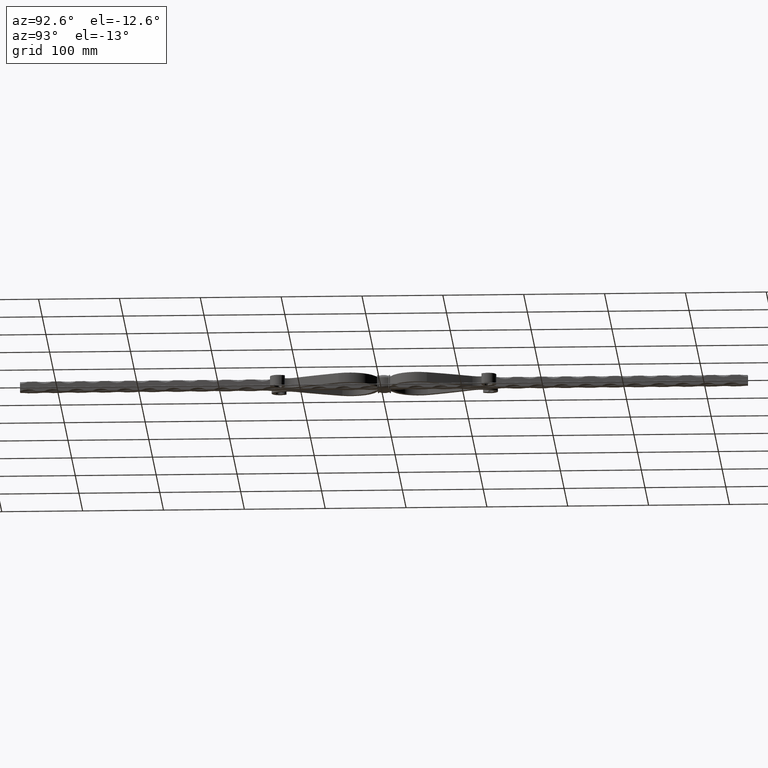
[diagram: clean part render]
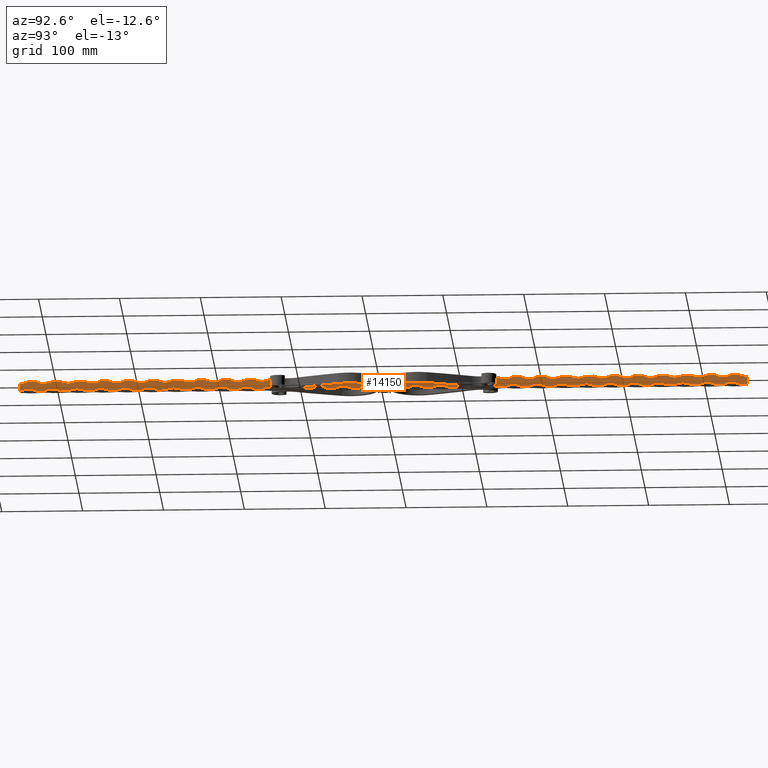
[diagram: same view with one face highlighted and labeled with its STEP entity id]
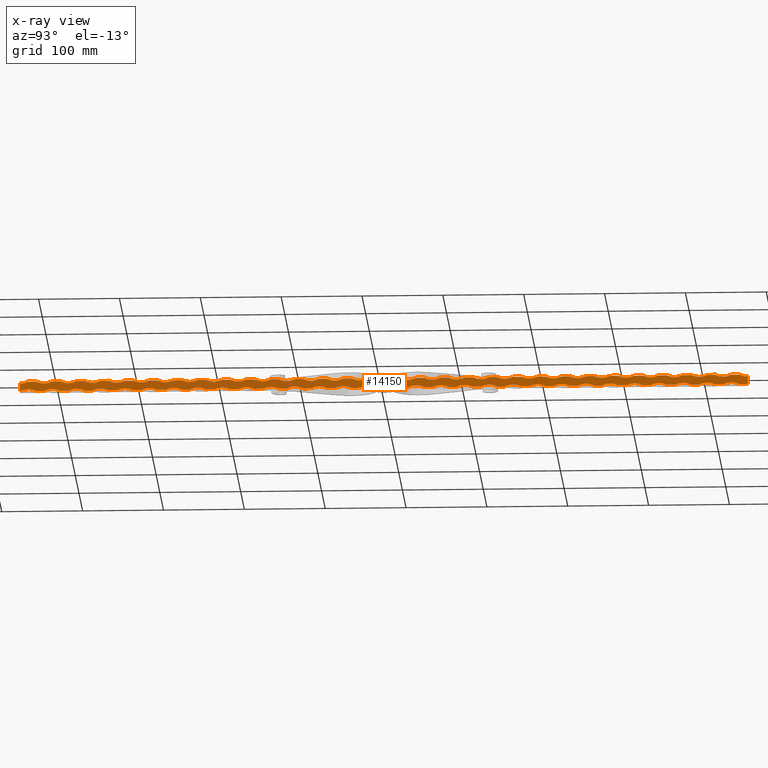
[diagram: x-ray of the same camera — body ghosted, the highlighted face saturated]
A machine part, auxiliary view. The second image highlights one B-rep face of the part: STEP entity #14150.
The next image is the same camera in x-ray: the body ghosted, the highlighted face saturated — about 0% of this face is hidden behind the body in this view.
In plain terms, the highlighted planar face has unit normal (-1, 0, 0).
Its self-contained STEP definition (entity closure, byte-faithful):
#44 = DIRECTION ( 'NONE',  ( -0.000000000000000000, -1.000000000000000000, -0.000000000000000000 ) ) ;
#61 = AXIS2_PLACEMENT_3D ( 'NONE', #16710, #15583, #17239 ) ;
#68 = EDGE_CURVE ( 'NONE', #3419, #17614, #929, .T. ) ;
#70 = CARTESIAN_POINT ( 'NONE',  ( 6.000000000000000000, -10.00000000000000888, 5.999999999999999112 ) ) ;
#80 = DIRECTION ( 'NONE',  ( 2.040851148208006026E-16, 0.000000000000000000, 1.000000000000000000 ) ) ;
#91 = EDGE_CURVE ( 'NONE', #21139, #19366, #11022, .T. ) ;
#92 = EDGE_CURVE ( 'NONE', #14533, #18231, #21077, .T. ) ;
#114 = LINE ( 'NONE', #17225, #2529 ) ;
#118 = LINE ( 'NONE', #1131, #20793 ) ;
#127 = VERTEX_POINT ( 'NONE', #9337 ) ;
#175 = ORIENTED_EDGE ( 'NONE', *, *, #11661, .F. ) ;
#196 = VERTEX_POINT ( 'NONE', #3457 ) ;
#212 = CARTESIAN_POINT ( 'NONE',  ( 5.999999999999992895, -19.99999999999996092, -24.75000000000002132 ) ) ;
#252 = CARTESIAN_POINT ( 'NONE',  ( 5.999999999999998224, -210.0000000000000284, -6.000000000000000000 ) ) ;
#275 = DIRECTION ( 'NONE',  ( -1.000000000000000000, 0.000000000000000000, 2.168404344971008868E-16 ) ) ;
#286 = CARTESIAN_POINT ( 'NONE',  ( 6.000000000000004441, -180.0000000000000000, 24.75000000000002132 ) ) ;
#292 = ORIENTED_EDGE ( 'NONE', *, *, #15255, .F. ) ;
#311 = DIRECTION ( 'NONE',  ( 2.040851148208006026E-16, 1.795949010423045303E-15, 1.000000000000000000 ) ) ;
#341 = EDGE_CURVE ( 'NONE', #15206, #15015, #12379, .T. ) ;
#342 = ORIENTED_EDGE ( 'NONE', *, *, #14926, .T. ) ;
#400 = DIRECTION ( 'NONE',  ( -1.000000000000000000, 0.000000000000000000, 2.168404344971008868E-16 ) ) ;
#408 = CARTESIAN_POINT ( 'NONE',  ( 6.000000000000004441, 420.0000000000000000, 24.75000000000002132 ) ) ;
#432 = ORIENTED_EDGE ( 'NONE', *, *, #3701, .F. ) ;
#443 = VECTOR ( 'NONE', #17637, 1000.000000000000000 ) ;
#450 = DIRECTION ( 'NONE',  ( 2.040851148208006026E-16, 0.000000000000000000, 1.000000000000000000 ) ) ;
#451 = DIRECTION ( 'NONE',  ( 1.000000000000000000, -0.000000000000000000, -2.168404344971008868E-16 ) ) ;
#466 = CARTESIAN_POINT ( 'NONE',  ( 5.999999999999992895, -350.0000000000000568, -24.75000000000002132 ) ) ;
#527 = DIRECTION ( 'NONE',  ( 2.040851148208006026E-16, 0.000000000000000000, 1.000000000000000000 ) ) ;
#528 = CIRCLE ( 'NONE', #6860, 21.25000000000002487 ) ;
#544 = EDGE_CURVE ( 'NONE', #11935, #16720, #19158, .T. ) ;
#557 = CARTESIAN_POINT ( 'NONE',  ( 5.999999999999998224, 329.9999999999999432, -6.000000000000000000 ) ) ;
#565 = LINE ( 'NONE', #2809, #9010 ) ;
#586 = EDGE_CURVE ( 'NONE', #18711, #16238, #5260, .T. ) ;
#608 = AXIS2_PLACEMENT_3D ( 'NONE', #14508, #15986, #14432 ) ;
#622 = EDGE_CURVE ( 'NONE', #3577, #16238, #17259, .T. ) ;
#625 = VECTOR ( 'NONE', #7264, 1000.000000000000000 ) ;
#646 = EDGE_CURVE ( 'NONE', #16938, #10970, #13732, .T. ) ;
#659 = CARTESIAN_POINT ( 'NONE',  ( 5.999999999999997335, 450.0000000000000000, -6.000000000000000888 ) ) ;
#704 = ORIENTED_EDGE ( 'NONE', *, *, #16918, .T. ) ;
#744 = DIRECTION ( 'NONE',  ( -0.000000000000000000, -1.000000000000000000, -0.000000000000000000 ) ) ;
#761 = ORIENTED_EDGE ( 'NONE', *, *, #341, .F. ) ;
#803 = EDGE_CURVE ( 'NONE', #9946, #20182, #6918, .T. ) ;
#847 = VERTEX_POINT ( 'NONE', #1008 ) ;
#863 = VERTEX_POINT ( 'NONE', #20153 ) ;
#884 = DIRECTION ( 'NONE',  ( -0.000000000000000000, -1.000000000000000000, -0.000000000000000000 ) ) ;
#892 = VERTEX_POINT ( 'NONE', #18650 ) ;
#929 = CIRCLE ( 'NONE', #21347, 21.25000000000002487 ) ;
#932 = VERTEX_POINT ( 'NONE', #10348 ) ;
#944 = VECTOR ( 'NONE', #1661, 1000.000000000000000 ) ;
#980 = AXIS2_PLACEMENT_3D ( 'NONE', #1846, #1687, #17577 ) ;
#989 = VERTEX_POINT ( 'NONE', #14009 ) ;
#1008 = CARTESIAN_POINT ( 'NONE',  ( 6.000000000000000000, -279.9999999999999432, 5.999999999999999112 ) ) ;
#1015 = CARTESIAN_POINT ( 'NONE',  ( 6.000000000000004441, -389.9999999999999432, 24.75000000000002132 ) ) ;
#1084 = CARTESIAN_POINT ( 'NONE',  ( 6.000000000000004441, -90.00000000000002842, 24.75000000000002132 ) ) ;
#1086 = CARTESIAN_POINT ( 'NONE',  ( 6.000000000000000000, 339.9999999999999432, 5.999999999999999112 ) ) ;
#1120 = EDGE_CURVE ( 'NONE', #18432, #6396, #9713, .T. ) ;
#1127 = ORIENTED_EDGE ( 'NONE', *, *, #5548, .T. ) ;
#1131 = CARTESIAN_POINT ( 'NONE',  ( 6.000000000000000000, 450.0000000000000000, 5.999999999999999112 ) ) ;
#1138 = VECTOR ( 'NONE', #7427, 1000.000000000000000 ) ;
#1140 = CARTESIAN_POINT ( 'NONE',  ( 5.999999999999997335, 450.0000000000000000, -6.000000000000000888 ) ) ;
#1142 = VERTEX_POINT ( 'NONE', #16190 ) ;
#1156 = DIRECTION ( 'NONE',  ( -0.000000000000000000, -1.000000000000000000, -0.000000000000000000 ) ) ;
#1170 = CIRCLE ( 'NONE', #12062, 21.25000000000002487 ) ;
#1219 = AXIS2_PLACEMENT_3D ( 'NONE', #6930, #10356, #17421 ) ;
#1220 = AXIS2_PLACEMENT_3D ( 'NONE', #18279, #13125, #2687 ) ;
#1272 = CARTESIAN_POINT ( 'NONE',  ( 5.999999999999998224, -60.00000000000000000, -6.000000000000000000 ) ) ;
#1323 = ORIENTED_EDGE ( 'NONE', *, *, #4997, .T. ) ;
#1370 = VECTOR ( 'NONE', #8931, 1000.000000000000000 ) ;
#1439 = LINE ( 'NONE', #5464, #6038 ) ;
#1459 = CARTESIAN_POINT ( 'NONE',  ( 5.999999999999997335, -190.0000000000000000, -6.000000000000001776 ) ) ;
#1462 = DIRECTION ( 'NONE',  ( -0.000000000000000000, -1.000000000000000000, -0.000000000000000000 ) ) ;
#1463 = EDGE_CURVE ( 'NONE', #7506, #3850, #6123, .T. ) ;
#1508 = LINE ( 'NONE', #659, #2857 ) ;
#1514 = DIRECTION ( 'NONE',  ( -0.000000000000000000, -1.000000000000000000, -0.000000000000000000 ) ) ;
#1528 = EDGE_CURVE ( 'NONE', #21731, #2060, #6699, .T. ) ;
#1536 = CIRCLE ( 'NONE', #8973, 21.25000000000002487 ) ;
#1537 = CARTESIAN_POINT ( 'NONE',  ( 5.999999999999997335, 450.0000000000000000, -6.000000000000000888 ) ) ;
#1547 = EDGE_CURVE ( 'NONE', #5609, #11781, #11041, .T. ) ;
#1576 = CARTESIAN_POINT ( 'NONE',  ( 5.999999999999997335, 450.0000000000000000, -6.000000000000000888 ) ) ;
#1603 = DIRECTION ( 'NONE',  ( 1.000000000000000000, -0.000000000000000000, -2.168404344971008868E-16 ) ) ;
#1645 = CARTESIAN_POINT ( 'NONE',  ( 6.000000000000000000, -310.0000000000000000, 5.999999999999999112 ) ) ;
#1661 = DIRECTION ( 'NONE',  ( -0.000000000000000000, -1.000000000000000000, -0.000000000000000000 ) ) ;
#1678 = DIRECTION ( 'NONE',  ( -0.000000000000000000, -1.000000000000000000, -0.000000000000000000 ) ) ;
#1684 = CARTESIAN_POINT ( 'NONE',  ( 6.000000000000000000, -410.0000000000000000, 5.999999999999999112 ) ) ;
#1687 = DIRECTION ( 'NONE',  ( -1.000000000000000000, 0.000000000000000000, 2.168404344971008868E-16 ) ) ;
#1712 = ORIENTED_EDGE ( 'NONE', *, *, #9923, .T. ) ;
#1726 = CARTESIAN_POINT ( 'NONE',  ( 5.999999999999997335, 230.0000000000000000, -6.000000000000001776 ) ) ;
#1746 = DIRECTION ( 'NONE',  ( -0.000000000000000000, -1.000000000000000000, -0.000000000000000000 ) ) ;
#1758 = DIRECTION ( 'NONE',  ( -1.000000000000000000, 0.000000000000000000, 2.168404344971008868E-16 ) ) ;
#1790 = LINE ( 'NONE', #1576, #10210 ) ;
#1796 = VERTEX_POINT ( 'NONE', #18052 ) ;
#1797 = CARTESIAN_POINT ( 'NONE',  ( 5.999999999999992895, 39.99999999999997868, -24.75000000000002132 ) ) ;
#1846 = CARTESIAN_POINT ( 'NONE',  ( 5.999999999999992895, 159.9999999999999716, -24.75000000000002132 ) ) ;
#1877 = VERTEX_POINT ( 'NONE', #16374 ) ;
#1937 = DIRECTION ( 'NONE',  ( 2.040851148208006026E-16, 0.000000000000000000, 1.000000000000000000 ) ) ;
#1950 = EDGE_CURVE ( 'NONE', #3831, #16216, #2576, .T. ) ;
#1979 = EDGE_CURVE ( 'NONE', #3466, #9946, #8023, .T. ) ;
#1995 = DIRECTION ( 'NONE',  ( -0.000000000000000000, -1.000000000000000000, -0.000000000000000000 ) ) ;
#2000 = LINE ( 'NONE', #7179, #625 ) ;
#2006 = CARTESIAN_POINT ( 'NONE',  ( 5.999999999999998224, 360.0000000000000000, -6.000000000000000000 ) ) ;
#2011 = EDGE_CURVE ( 'NONE', #4760, #9407, #17033, .T. ) ;
#2021 = DIRECTION ( 'NONE',  ( 2.040851148208006026E-16, 0.000000000000000000, 1.000000000000000000 ) ) ;
#2045 = CARTESIAN_POINT ( 'NONE',  ( 6.000000000000000000, 450.0000000000000000, 5.999999999999999112 ) ) ;
#2060 = VERTEX_POINT ( 'NONE', #17315 ) ;
#2070 = CARTESIAN_POINT ( 'NONE',  ( 5.999999999999997335, 450.0000000000000000, -6.000000000000000888 ) ) ;
#2104 = CIRCLE ( 'NONE', #20428, 21.25000000000002487 ) ;
#2108 = ORIENTED_EDGE ( 'NONE', *, *, #19919, .F. ) ;
#2137 = EDGE_CURVE ( 'NONE', #17904, #11837, #17569, .T. ) ;
#2171 = CARTESIAN_POINT ( 'NONE',  ( 6.000000000000000000, -350.0000000000000568, 5.999999999999999112 ) ) ;
#2184 = ORIENTED_EDGE ( 'NONE', *, *, #1463, .T. ) ;
#2188 = CARTESIAN_POINT ( 'NONE',  ( 6.000000000000004441, 270.0000000000000000, 24.75000000000002132 ) ) ;
#2191 = ORIENTED_EDGE ( 'NONE', *, *, #20717, .T. ) ;
#2265 = EDGE_CURVE ( 'NONE', #5009, #16648, #8866, .T. ) ;
#2273 = VECTOR ( 'NONE', #6412, 1000.000000000000000 ) ;
#2278 = DIRECTION ( 'NONE',  ( 1.000000000000000000, -0.000000000000000000, -2.168404344971008868E-16 ) ) ;
#2323 = ORIENTED_EDGE ( 'NONE', *, *, #19401, .F. ) ;
#2373 = CARTESIAN_POINT ( 'NONE',  ( 6.000000000000004441, -450.0000000000000000, 24.75000000000002132 ) ) ;
#2391 = DIRECTION ( 'NONE',  ( -0.000000000000000000, -1.000000000000000000, -0.000000000000000000 ) ) ;
#2399 = CARTESIAN_POINT ( 'NONE',  ( 6.000000000000000000, -19.99999999999996092, 5.999999999999999112 ) ) ;
#2401 = EDGE_CURVE ( 'NONE', #6275, #18231, #10215, .T. ) ;
#2468 = VECTOR ( 'NONE', #1156, 1000.000000000000000 ) ;
#2477 = EDGE_CURVE ( 'NONE', #863, #18246, #8293, .T. ) ;
#2529 = VECTOR ( 'NONE', #8557, 1000.000000000000000 ) ;
#2531 = EDGE_CURVE ( 'NONE', #5405, #7018, #4735, .T. ) ;
#2570 = ORIENTED_EDGE ( 'NONE', *, *, #1528, .F. ) ;
#2576 = CIRCLE ( 'NONE', #14833, 21.25000000000002487 ) ;
#2583 = ORIENTED_EDGE ( 'NONE', *, *, #21194, .F. ) ;
#2608 = CARTESIAN_POINT ( 'NONE',  ( 5.999999999999997335, -249.9999999999999432, -6.000000000000001776 ) ) ;
#2631 = CARTESIAN_POINT ( 'NONE',  ( 6.000000000000000000, -290.0000000000000000, 5.999999999999999112 ) ) ;
#2633 = DIRECTION ( 'NONE',  ( -1.000000000000000000, 0.000000000000000000, 2.168404344971008868E-16 ) ) ;
#2648 = EDGE_CURVE ( 'NONE', #4108, #19678, #5285, .T. ) ;
#2650 = VERTEX_POINT ( 'NONE', #1086 ) ;
#2687 = DIRECTION ( 'NONE',  ( 2.040851148208006026E-16, 0.000000000000000000, 1.000000000000000000 ) ) ;
#2715 = VERTEX_POINT ( 'NONE', #1459 ) ;
#2719 = AXIS2_PLACEMENT_3D ( 'NONE', #10249, #17228, #22401 ) ;
#2750 = DIRECTION ( 'NONE',  ( 1.000000000000000000, -0.000000000000000000, -2.168404344971008868E-16 ) ) ;
#2761 = CARTESIAN_POINT ( 'NONE',  ( 5.999999999999992895, -410.0000000000000000, -24.75000000000002132 ) ) ;
#2809 = CARTESIAN_POINT ( 'NONE',  ( 5.999999999999997335, 450.0000000000000000, -6.000000000000000888 ) ) ;
#2840 = CARTESIAN_POINT ( 'NONE',  ( 6.000000000000000000, 450.0000000000000000, 3.499999999999996003 ) ) ;
#2857 = VECTOR ( 'NONE', #744, 1000.000000000000000 ) ;
#2861 = VERTEX_POINT ( 'NONE', #10594 ) ;
#2969 = EDGE_CURVE ( 'NONE', #14843, #8207, #6339, .T. ) ;
#2997 = AXIS2_PLACEMENT_3D ( 'NONE', #17649, #5672, #17868 ) ;
#3056 = CARTESIAN_POINT ( 'NONE',  ( 5.999999999999997335, 450.0000000000000000, -6.000000000000000888 ) ) ;
#3085 = EDGE_CURVE ( 'NONE', #14300, #14457, #118, .T. ) ;
#3097 = DIRECTION ( 'NONE',  ( -1.000000000000000000, 0.000000000000000000, 2.168404344971008868E-16 ) ) ;
#3130 = CARTESIAN_POINT ( 'NONE',  ( 5.999999999999998224, -90.00000000000002842, -6.000000000000000000 ) ) ;
#3163 = CARTESIAN_POINT ( 'NONE',  ( 6.000000000000000000, -370.0000000000000568, 5.999999999999999112 ) ) ;
#3181 = CARTESIAN_POINT ( 'NONE',  ( 6.000000000000000000, 100.0000000000000284, 5.999999999999999112 ) ) ;
#3210 = ORIENTED_EDGE ( 'NONE', *, *, #3711, .T. ) ;
#3212 = CARTESIAN_POINT ( 'NONE',  ( 5.999999999999997335, 450.0000000000000000, -6.000000000000000888 ) ) ;
#3238 = DIRECTION ( 'NONE',  ( -0.000000000000000000, -1.000000000000000000, -0.000000000000000000 ) ) ;
#3255 = EDGE_CURVE ( 'NONE', #3831, #196, #12906, .T. ) ;
#3274 = VERTEX_POINT ( 'NONE', #7343 ) ;
#3284 = VERTEX_POINT ( 'NONE', #2171 ) ;
#3285 = CARTESIAN_POINT ( 'NONE',  ( 6.000000000000004441, 0.000000000000000000, 24.75000000000002132 ) ) ;
#3302 = CARTESIAN_POINT ( 'NONE',  ( 6.000000000000000000, 350.0000000000000000, 5.999999999999999112 ) ) ;
#3319 = CARTESIAN_POINT ( 'NONE',  ( 5.999999999999998224, 300.0000000000000000, -6.000000000000000000 ) ) ;
#3361 = ORIENTED_EDGE ( 'NONE', *, *, #11758, .T. ) ;
#3390 = ORIENTED_EDGE ( 'NONE', *, *, #13204, .T. ) ;
#3394 = VERTEX_POINT ( 'NONE', #21930 ) ;
#3403 = ORIENTED_EDGE ( 'NONE', *, *, #8418, .T. ) ;
#3417 = ORIENTED_EDGE ( 'NONE', *, *, #7441, .F. ) ;
#3419 = VERTEX_POINT ( 'NONE', #22004 ) ;
#3457 = CARTESIAN_POINT ( 'NONE',  ( 5.999999999999997335, 80.00000000000001421, -6.000000000000001776 ) ) ;
#3466 = VERTEX_POINT ( 'NONE', #16936 ) ;
#3486 = CARTESIAN_POINT ( 'NONE',  ( 5.999999999999992895, 70.00000000000000000, -24.75000000000002132 ) ) ;
#3497 = CARTESIAN_POINT ( 'NONE',  ( 6.000000000000000000, 250.0000000000000000, 5.999999999999999112 ) ) ;
#3509 = CIRCLE ( 'NONE', #22009, 21.25000000000002487 ) ;
#3577 = VERTEX_POINT ( 'NONE', #8638 ) ;
#3585 = LINE ( 'NONE', #16142, #19367 ) ;
#3608 = VECTOR ( 'NONE', #19256, 1000.000000000000000 ) ;
#3611 = VERTEX_POINT ( 'NONE', #17229 ) ;
#3626 = ORIENTED_EDGE ( 'NONE', *, *, #68, .T. ) ;
#3643 = VECTOR ( 'NONE', #17466, 1000.000000000000000 ) ;
#3679 = CARTESIAN_POINT ( 'NONE',  ( 6.000000000000000000, 450.0000000000000000, 5.999999999999999112 ) ) ;
#3701 = EDGE_CURVE ( 'NONE', #13122, #22104, #2000, .T. ) ;
#3705 = CARTESIAN_POINT ( 'NONE',  ( 6.000000000000000000, -139.9999999999999716, 5.999999999999999112 ) ) ;
#3708 = CIRCLE ( 'NONE', #18950, 21.25000000000002487 ) ;
#3711 = EDGE_CURVE ( 'NONE', #19958, #15015, #14785, .T. ) ;
#3731 = ORIENTED_EDGE ( 'NONE', *, *, #11329, .T. ) ;
#3761 = DIRECTION ( 'NONE',  ( 2.040851148208006026E-16, 0.000000000000000000, 1.000000000000000000 ) ) ;
#3795 = VERTEX_POINT ( 'NONE', #17617 ) ;
#3830 = DIRECTION ( 'NONE',  ( 2.040851148208006026E-16, 0.000000000000000000, 1.000000000000000000 ) ) ;
#3831 = VERTEX_POINT ( 'NONE', #19719 ) ;
#3850 = VERTEX_POINT ( 'NONE', #10910 ) ;
#3851 = CARTESIAN_POINT ( 'NONE',  ( 6.000000000000000000, 130.0000000000000000, 5.999999999999999112 ) ) ;
#3859 = CARTESIAN_POINT ( 'NONE',  ( 6.000000000000000000, -39.99999999999997868, 5.999999999999999112 ) ) ;
#3888 = CARTESIAN_POINT ( 'NONE',  ( 5.999999999999997335, 450.0000000000000000, -6.000000000000000888 ) ) ;
#3898 = LINE ( 'NONE', #19513, #22436 ) ;
#3900 = ORIENTED_EDGE ( 'NONE', *, *, #92, .F. ) ;
#3910 = ORIENTED_EDGE ( 'NONE', *, *, #16280, .T. ) ;
#3913 = PLANE ( 'NONE',  #2997 ) ;
#3938 = AXIS2_PLACEMENT_3D ( 'NONE', #10057, #15242, #22219 ) ;
#3948 = DIRECTION ( 'NONE',  ( -0.000000000000000000, -1.000000000000000000, -0.000000000000000000 ) ) ;
#3957 = VERTEX_POINT ( 'NONE', #2608 ) ;
#3970 = CIRCLE ( 'NONE', #5296, 21.25000000000002487 ) ;
#3995 = VECTOR ( 'NONE', #18453, 1000.000000000000000 ) ;
#4036 = DIRECTION ( 'NONE',  ( -0.000000000000000000, -1.000000000000000000, -0.000000000000000000 ) ) ;
#4058 = ORIENTED_EDGE ( 'NONE', *, *, #22063, .F. ) ;
#4063 = CIRCLE ( 'NONE', #12548, 21.25000000000002487 ) ;
#4086 = DIRECTION ( 'NONE',  ( -0.000000000000000000, -1.000000000000000000, -0.000000000000000000 ) ) ;
#4108 = VERTEX_POINT ( 'NONE', #8851 ) ;
#4130 = EDGE_CURVE ( 'NONE', #11296, #17737, #1439, .T. ) ;
#4131 = ORIENTED_EDGE ( 'NONE', *, *, #5279, .F. ) ;
#4135 = ORIENTED_EDGE ( 'NONE', *, *, #22212, .F. ) ;
#4142 = LINE ( 'NONE', #3212, #19394 ) ;
#4171 = CARTESIAN_POINT ( 'NONE',  ( 6.000000000000000000, 450.0000000000000000, 5.999999999999999112 ) ) ;
#4184 = CARTESIAN_POINT ( 'NONE',  ( 5.999999999999997335, 450.0000000000000000, -6.000000000000000888 ) ) ;
#4221 = ORIENTED_EDGE ( 'NONE', *, *, #2477, .F. ) ;
#4237 = LINE ( 'NONE', #20929, #17852 ) ;
#4307 = VERTEX_POINT ( 'NONE', #16218 ) ;
#4397 = DIRECTION ( 'NONE',  ( -0.000000000000000000, -1.000000000000000000, -0.000000000000000000 ) ) ;
#4414 = ORIENTED_EDGE ( 'NONE', *, *, #13814, .T. ) ;
#4427 = CARTESIAN_POINT ( 'NONE',  ( 6.000000000000004441, -420.0000000000000000, 24.75000000000002132 ) ) ;
#4468 = CARTESIAN_POINT ( 'NONE',  ( 6.000000000000004441, 180.0000000000000000, 24.75000000000002132 ) ) ;
#4499 = VECTOR ( 'NONE', #11889, 1000.000000000000000 ) ;
#4506 = CARTESIAN_POINT ( 'NONE',  ( 6.000000000000000000, 450.0000000000000000, 5.999999999999999112 ) ) ;
#4520 = LINE ( 'NONE', #3056, #15720 ) ;
#4530 = EDGE_CURVE ( 'NONE', #8257, #20549, #13673, .T. ) ;
#4577 = AXIS2_PLACEMENT_3D ( 'NONE', #14275, #17761, #3761 ) ;
#4667 = CARTESIAN_POINT ( 'NONE',  ( 6.000000000000000000, 10.00000000000001066, 5.999999999999999112 ) ) ;
#4711 = EDGE_CURVE ( 'NONE', #1796, #3284, #21534, .T. ) ;
#4735 = LINE ( 'NONE', #19231, #12128 ) ;
#4754 = VECTOR ( 'NONE', #21652, 1000.000000000000000 ) ;
#4760 = VERTEX_POINT ( 'NONE', #12624 ) ;
#4766 = DIRECTION ( 'NONE',  ( 2.040851148208006026E-16, 0.000000000000000000, 1.000000000000000000 ) ) ;
#4900 = CARTESIAN_POINT ( 'NONE',  ( 5.999999999999997335, 450.0000000000000000, -6.000000000000000888 ) ) ;
#4916 = DIRECTION ( 'NONE',  ( 2.040851148208006026E-16, 0.000000000000000000, 1.000000000000000000 ) ) ;
#4951 = CARTESIAN_POINT ( 'NONE',  ( 5.999999999999998224, 120.0000000000000000, -6.000000000000000000 ) ) ;
#4957 = ORIENTED_EDGE ( 'NONE', *, *, #12542, .F. ) ;
#4971 = CARTESIAN_POINT ( 'NONE',  ( 6.000000000000004441, 449.9999999999999432, 24.75000000000002132 ) ) ;
#4994 = EDGE_CURVE ( 'NONE', #17236, #22104, #22066, .T. ) ;
#4997 = EDGE_CURVE ( 'NONE', #17904, #11585, #6264, .T. ) ;
#5009 = VERTEX_POINT ( 'NONE', #15724 ) ;
#5014 = LINE ( 'NONE', #18300, #944 ) ;
#5080 = LINE ( 'NONE', #11166, #20066 ) ;
#5111 = ORIENTED_EDGE ( 'NONE', *, *, #5166, .T. ) ;
#5123 = CIRCLE ( 'NONE', #8457, 21.25000000000002487 ) ;
#5138 = EDGE_CURVE ( 'NONE', #3795, #17737, #19625, .T. ) ;
#5148 = DIRECTION ( 'NONE',  ( -1.000000000000000000, 0.000000000000000000, 2.168404344971008868E-16 ) ) ;
#5166 = EDGE_CURVE ( 'NONE', #21731, #2650, #14453, .T. ) ;
#5179 = ORIENTED_EDGE ( 'NONE', *, *, #1979, .F. ) ;
#5258 = CARTESIAN_POINT ( 'NONE',  ( 5.999999999999997335, -159.9999999999999716, -6.000000000000001776 ) ) ;
#5260 = LINE ( 'NONE', #4171, #14003 ) ;
#5279 = EDGE_CURVE ( 'NONE', #15340, #16216, #10927, .T. ) ;
#5285 = CIRCLE ( 'NONE', #5364, 21.25000000000002487 ) ;
#5296 = AXIS2_PLACEMENT_3D ( 'NONE', #20490, #22301, #11980 ) ;
#5362 = LINE ( 'NONE', #1140, #18444 ) ;
#5364 = AXIS2_PLACEMENT_3D ( 'NONE', #1015, #7996, #11371 ) ;
#5365 = LINE ( 'NONE', #14891, #3995 ) ;
#5398 = LINE ( 'NONE', #22090, #7290 ) ;
#5400 = DIRECTION ( 'NONE',  ( 2.040851148208006026E-16, 0.000000000000000000, 1.000000000000000000 ) ) ;
#5405 = VERTEX_POINT ( 'NONE', #8675 ) ;
#5407 = EDGE_CURVE ( 'NONE', #11660, #18246, #21007, .T. ) ;
#5441 = ORIENTED_EDGE ( 'NONE', *, *, #5138, .F. ) ;
#5464 = CARTESIAN_POINT ( 'NONE',  ( 6.000000000000000000, 450.0000000000000000, 5.999999999999999112 ) ) ;
#5540 = CARTESIAN_POINT ( 'NONE',  ( 5.999999999999992895, -80.00000000000001421, -24.75000000000002132 ) ) ;
#5548 = EDGE_CURVE ( 'NONE', #863, #3957, #15856, .T. ) ;
#5554 = CARTESIAN_POINT ( 'NONE',  ( 5.999999999999992895, 280.0000000000000000, -24.75000000000002132 ) ) ;
#5563 = ORIENTED_EDGE ( 'NONE', *, *, #8070, .F. ) ;
#5583 = ORIENTED_EDGE ( 'NONE', *, *, #19622, .F. ) ;
#5589 = EDGE_CURVE ( 'NONE', #12142, #932, #19344, .T. ) ;
#5609 = VERTEX_POINT ( 'NONE', #19877 ) ;
#5637 = CARTESIAN_POINT ( 'NONE',  ( 5.999999999999997335, -100.0000000000000284, -6.000000000000001776 ) ) ;
#5672 = DIRECTION ( 'NONE',  ( -1.000000000000000000, 0.000000000000000000, 2.168404344971008868E-16 ) ) ;
#5684 = VERTEX_POINT ( 'NONE', #14569 ) ;
#5711 = ORIENTED_EDGE ( 'NONE', *, *, #12419, .T. ) ;
#5819 = CIRCLE ( 'NONE', #980, 21.25000000000002487 ) ;
#5842 = DIRECTION ( 'NONE',  ( 2.040851148208006026E-16, 0.000000000000000000, 1.000000000000000000 ) ) ;
#5860 = AXIS2_PLACEMENT_3D ( 'NONE', #20687, #5148, #4916 ) ;
#5863 = AXIS2_PLACEMENT_3D ( 'NONE', #13205, #2750, #11311 ) ;
#5910 = CIRCLE ( 'NONE', #3938, 21.25000000000002487 ) ;
#5935 = DIRECTION ( 'NONE',  ( -0.000000000000000000, -1.000000000000000000, -0.000000000000000000 ) ) ;
#5944 = DIRECTION ( 'NONE',  ( 2.040851148208006026E-16, 0.000000000000000000, 1.000000000000000000 ) ) ;
#5954 = DIRECTION ( 'NONE',  ( -0.000000000000000000, -1.000000000000000000, -0.000000000000000000 ) ) ;
#5990 = EDGE_CURVE ( 'NONE', #17310, #9101, #12862, .T. ) ;
#6038 = VECTOR ( 'NONE', #1995, 1000.000000000000000 ) ;
#6068 = ORIENTED_EDGE ( 'NONE', *, *, #586, .T. ) ;
#6107 = ORIENTED_EDGE ( 'NONE', *, *, #803, .F. ) ;
#6115 = ORIENTED_EDGE ( 'NONE', *, *, #10882, .F. ) ;
#6123 = CIRCLE ( 'NONE', #6206, 21.25000000000002487 ) ;
#6167 = EDGE_CURVE ( 'NONE', #3466, #19043, #3585, .T. ) ;
#6206 = AXIS2_PLACEMENT_3D ( 'NONE', #5540, #12736, #16136 ) ;
#6214 = VECTOR ( 'NONE', #4397, 1000.000000000000000 ) ;
#6220 = DIRECTION ( 'NONE',  ( 2.040851148208006026E-16, 0.000000000000000000, 1.000000000000000000 ) ) ;
#6224 = DIRECTION ( 'NONE',  ( -1.000000000000000000, 0.000000000000000000, 2.168404344971008868E-16 ) ) ;
#6252 = CARTESIAN_POINT ( 'NONE',  ( 6.000000000000004441, 29.99999999999997158, 24.75000000000002132 ) ) ;
#6264 = LINE ( 'NONE', #17381, #8195 ) ;
#6271 = AXIS2_PLACEMENT_3D ( 'NONE', #21836, #20043, #7807 ) ;
#6274 = CARTESIAN_POINT ( 'NONE',  ( 5.999999999999997335, -310.0000000000000000, -6.000000000000001776 ) ) ;
#6275 = VERTEX_POINT ( 'NONE', #22126 ) ;
#6301 = VERTEX_POINT ( 'NONE', #15071 ) ;
#6336 = EDGE_CURVE ( 'NONE', #14533, #16066, #9028, .T. ) ;
#6339 = CIRCLE ( 'NONE', #17462, 21.25000000000002487 ) ;
#6353 = DIRECTION ( 'NONE',  ( 2.040851148208006026E-16, 0.000000000000000000, 1.000000000000000000 ) ) ;
#6358 = CARTESIAN_POINT ( 'NONE',  ( 6.000000000000000000, 410.0000000000000000, 5.999999999999999112 ) ) ;
#6381 = DIRECTION ( 'NONE',  ( 2.040851148208006026E-16, 0.000000000000000000, 1.000000000000000000 ) ) ;
#6396 = VERTEX_POINT ( 'NONE', #8971 ) ;
#6412 = DIRECTION ( 'NONE',  ( -2.168404344971008868E-16, -0.000000000000000000, -1.000000000000000000 ) ) ;
#6439 = EDGE_CURVE ( 'NONE', #14752, #19678, #7110, .T. ) ;
#6505 = CARTESIAN_POINT ( 'NONE',  ( 6.000000000000000000, 450.0000000000000000, 5.999999999999999112 ) ) ;
#6613 = VECTOR ( 'NONE', #20199, 1000.000000000000000 ) ;
#6618 = DIRECTION ( 'NONE',  ( -0.000000000000000000, -1.000000000000000000, -0.000000000000000000 ) ) ;
#6619 = CARTESIAN_POINT ( 'NONE',  ( 6.000000000000004441, -360.0000000000000568, 24.75000000000002132 ) ) ;
#6620 = EDGE_CURVE ( 'NONE', #11032, #16066, #8203, .T. ) ;
#6663 = DIRECTION ( 'NONE',  ( 2.040851148208006026E-16, 0.000000000000000000, 1.000000000000000000 ) ) ;
#6677 = ORIENTED_EDGE ( 'NONE', *, *, #16839, .T. ) ;
#6699 = CIRCLE ( 'NONE', #12086, 21.25000000000002487 ) ;
#6703 = VERTEX_POINT ( 'NONE', #21333 ) ;
#6714 = CARTESIAN_POINT ( 'NONE',  ( 6.000000000000000000, 70.00000000000000000, 5.999999999999999112 ) ) ;
#6755 = ORIENTED_EDGE ( 'NONE', *, *, #10823, .F. ) ;
#6778 = AXIS2_PLACEMENT_3D ( 'NONE', #19078, #8659, #80 ) ;
#6798 = DIRECTION ( 'NONE',  ( 1.000000000000000000, -0.000000000000000000, -2.168404344971008868E-16 ) ) ;
#6860 = AXIS2_PLACEMENT_3D ( 'NONE', #11140, #18137, #5944 ) ;
#6893 = CARTESIAN_POINT ( 'NONE',  ( 6.000000000000000000, 260.0000000000000000, 5.999999999999999112 ) ) ;
#6915 = DIRECTION ( 'NONE',  ( -1.000000000000000000, 0.000000000000000000, 2.168404344971008868E-16 ) ) ;
#6917 = CARTESIAN_POINT ( 'NONE',  ( 5.999999999999997335, 450.0000000000000000, -6.000000000000000888 ) ) ;
#6918 = LINE ( 'NONE', #16777, #2273 ) ;
#6927 = CIRCLE ( 'NONE', #15081, 21.25000000000002487 ) ;
#6930 = CARTESIAN_POINT ( 'NONE',  ( 5.999999999999992895, -290.0000000000000000, -24.75000000000002132 ) ) ;
#6984 = ORIENTED_EDGE ( 'NONE', *, *, #13947, .F. ) ;
#7018 = VERTEX_POINT ( 'NONE', #13892 ) ;
#7035 = CARTESIAN_POINT ( 'NONE',  ( 5.999999999999997335, -279.9999999999999432, -6.000000000000001776 ) ) ;
#7043 = AXIS2_PLACEMENT_3D ( 'NONE', #11502, #11584, #13174 ) ;
#7070 = DIRECTION ( 'NONE',  ( 1.000000000000000000, -0.000000000000000000, -2.168404344971008868E-16 ) ) ;
#7078 = ORIENTED_EDGE ( 'NONE', *, *, #19770, .F. ) ;
#7103 = DIRECTION ( 'NONE',  ( 1.000000000000000000, -0.000000000000000000, -2.168404344971008868E-16 ) ) ;
#7108 = DIRECTION ( 'NONE',  ( 2.040851148208006026E-16, 0.000000000000000000, 1.000000000000000000 ) ) ;
#7110 = LINE ( 'NONE', #2045, #1138 ) ;
#7113 = ORIENTED_EDGE ( 'NONE', *, *, #6620, .F. ) ;
#7144 = CARTESIAN_POINT ( 'NONE',  ( 6.000000000000004441, -149.9999999999999716, 24.75000000000002132 ) ) ;
#7179 = CARTESIAN_POINT ( 'NONE',  ( 5.999999999999997335, 450.0000000000000000, -6.000000000000000888 ) ) ;
#7229 = LINE ( 'NONE', #13742, #12436 ) ;
#7234 = CARTESIAN_POINT ( 'NONE',  ( 6.000000000000004441, -29.99999999999997158, 24.75000000000002132 ) ) ;
#7264 = DIRECTION ( 'NONE',  ( -0.000000000000000000, -1.000000000000000000, -0.000000000000000000 ) ) ;
#7290 = VECTOR ( 'NONE', #11703, 1000.000000000000000 ) ;
#7295 = CARTESIAN_POINT ( 'NONE',  ( 5.999999999999992895, 339.9999999999999432, -24.75000000000002132 ) ) ;
#7343 = CARTESIAN_POINT ( 'NONE',  ( 6.000000000000000000, 310.0000000000000000, 5.999999999999999112 ) ) ;
#7356 = EDGE_CURVE ( 'NONE', #22270, #2715, #4063, .T. ) ;
#7360 = EDGE_CURVE ( 'NONE', #12142, #22496, #565, .T. ) ;
#7401 = VERTEX_POINT ( 'NONE', #12123 ) ;
#7427 = DIRECTION ( 'NONE',  ( -0.000000000000000000, -1.000000000000000000, -0.000000000000000000 ) ) ;
#7441 = EDGE_CURVE ( 'NONE', #5009, #10220, #21760, .T. ) ;
#7446 = CARTESIAN_POINT ( 'NONE',  ( 6.000000000000000000, 190.0000000000000000, 5.999999999999999112 ) ) ;
#7506 = VERTEX_POINT ( 'NONE', #3130 ) ;
#7520 = AXIS2_PLACEMENT_3D ( 'NONE', #12787, #14515, #527 ) ;
#7529 = VERTEX_POINT ( 'NONE', #8832 ) ;
#7552 = ORIENTED_EDGE ( 'NONE', *, *, #2648, .F. ) ;
#7597 = CARTESIAN_POINT ( 'NONE',  ( 6.000000000000000000, 450.0000000000000000, 5.999999999999999112 ) ) ;
#7655 = VECTOR ( 'NONE', #10971, 1000.000000000000000 ) ;
#7659 = CARTESIAN_POINT ( 'NONE',  ( 6.000000000000000000, -220.0000000000000284, 5.999999999999999112 ) ) ;
#7749 = CARTESIAN_POINT ( 'NONE',  ( 5.999999999999997335, -9.999999999999953815, -6.000000000000001776 ) ) ;
#7760 = ORIENTED_EDGE ( 'NONE', *, *, #6439, .T. ) ;
#7807 = DIRECTION ( 'NONE',  ( 2.040851148208006026E-16, 0.000000000000000000, 1.000000000000000000 ) ) ;
#7809 = EDGE_CURVE ( 'NONE', #11660, #17614, #18503, .T. ) ;
#7833 = AXIS2_PLACEMENT_3D ( 'NONE', #11879, #18785, #11795 ) ;
#7836 = ORIENTED_EDGE ( 'NONE', *, *, #9347, .F. ) ;
#7857 = DIRECTION ( 'NONE',  ( -1.000000000000000000, 0.000000000000000000, 2.168404344971008868E-16 ) ) ;
#7881 = LINE ( 'NONE', #6505, #18479 ) ;
#7926 = CARTESIAN_POINT ( 'NONE',  ( 5.999999999999997335, -450.0000000000000000, -6.000000000000000888 ) ) ;
#7965 = AXIS2_PLACEMENT_3D ( 'NONE', #12351, #7070, #19169 ) ;
#7988 = ORIENTED_EDGE ( 'NONE', *, *, #14956, .F. ) ;
#7996 = DIRECTION ( 'NONE',  ( 1.000000000000000000, -0.000000000000000000, -2.168404344971008868E-16 ) ) ;
#8023 = CIRCLE ( 'NONE', #18316, 21.25000000000002487 ) ;
#8039 = CARTESIAN_POINT ( 'NONE',  ( 6.000000000000000000, 169.9999999999999716, 5.999999999999999112 ) ) ;
#8042 = LINE ( 'NONE', #7597, #4754 ) ;
#8045 = CARTESIAN_POINT ( 'NONE',  ( 6.000000000000000000, -320.0000000000000000, 5.999999999999999112 ) ) ;
#8046 = VECTOR ( 'NONE', #18549, 1000.000000000000000 ) ;
#8056 = CARTESIAN_POINT ( 'NONE',  ( 5.999999999999992895, 370.0000000000000000, -24.75000000000002132 ) ) ;
#8070 = EDGE_CURVE ( 'NONE', #6275, #932, #19850, .T. ) ;
#8092 = CARTESIAN_POINT ( 'NONE',  ( 5.999999999999992895, 100.0000000000000284, -24.75000000000002132 ) ) ;
#8114 = ORIENTED_EDGE ( 'NONE', *, *, #18583, .F. ) ;
#8129 = ORIENTED_EDGE ( 'NONE', *, *, #15789, .F. ) ;
#8153 = DIRECTION ( 'NONE',  ( -0.000000000000000000, -1.000000000000000000, -0.000000000000000000 ) ) ;
#8154 = CARTESIAN_POINT ( 'NONE',  ( 5.999999999999997335, 49.99999999999998579, -6.000000000000001776 ) ) ;
#8168 = CARTESIAN_POINT ( 'NONE',  ( 5.999999999999998224, -29.99999999999997158, -6.000000000000000000 ) ) ;
#8190 = VERTEX_POINT ( 'NONE', #13293 ) ;
#8195 = VECTOR ( 'NONE', #44, 1000.000000000000000 ) ;
#8203 = LINE ( 'NONE', #12021, #12041 ) ;
#8207 = VERTEX_POINT ( 'NONE', #15191 ) ;
#8229 = CARTESIAN_POINT ( 'NONE',  ( 5.999999999999998224, 180.0000000000000000, -6.000000000000000000 ) ) ;
#8257 = VERTEX_POINT ( 'NONE', #20873 ) ;
#8293 = LINE ( 'NONE', #15887, #3643 ) ;
#8328 = ORIENTED_EDGE ( 'NONE', *, *, #16362, .T. ) ;
#8339 = VERTEX_POINT ( 'NONE', #5258 ) ;
#8360 = EDGE_CURVE ( 'NONE', #22270, #6703, #10625, .T. ) ;
#8362 = ORIENTED_EDGE ( 'NONE', *, *, #3255, .F. ) ;
#8364 = EDGE_CURVE ( 'NONE', #20299, #20720, #22303, .T. ) ;
#8384 = VERTEX_POINT ( 'NONE', #18051 ) ;
#8387 = EDGE_CURVE ( 'NONE', #14769, #9932, #528, .T. ) ;
#8409 = AXIS2_PLACEMENT_3D ( 'NONE', #11160, #2633, #14893 ) ;
#8418 = EDGE_CURVE ( 'NONE', #847, #9932, #10881, .T. ) ;
#8457 = AXIS2_PLACEMENT_3D ( 'NONE', #7234, #21154, #311 ) ;
#8529 = ORIENTED_EDGE ( 'NONE', *, *, #10094, .T. ) ;
#8542 = LINE ( 'NONE', #21656, #18888 ) ;
#8546 = AXIS2_PLACEMENT_3D ( 'NONE', #6619, #18805, #20556 ) ;
#8557 = DIRECTION ( 'NONE',  ( -0.000000000000000000, -1.000000000000000000, -0.000000000000000000 ) ) ;
#8604 = CIRCLE ( 'NONE', #1220, 21.25000000000002487 ) ;
#8615 = DIRECTION ( 'NONE',  ( 1.000000000000000000, -0.000000000000000000, -2.168404344971008868E-16 ) ) ;
#8638 = CARTESIAN_POINT ( 'NONE',  ( 6.000000000000000000, -100.0000000000000284, 5.999999999999999112 ) ) ;
#8659 = DIRECTION ( 'NONE',  ( -1.000000000000000000, 0.000000000000000000, 2.168404344971008868E-16 ) ) ;
#8673 = EDGE_CURVE ( 'NONE', #15206, #20720, #3509, .T. ) ;
#8675 = CARTESIAN_POINT ( 'NONE',  ( 6.000000000000000000, -159.9999999999999716, 5.999999999999999112 ) ) ;
#8760 = CARTESIAN_POINT ( 'NONE',  ( 5.999999999999997335, -450.0000000000000000, -6.000000000000000888 ) ) ;
#8808 = VECTOR ( 'NONE', #3238, 1000.000000000000000 ) ;
#8832 = CARTESIAN_POINT ( 'NONE',  ( 6.000000000000000000, 199.9999999999999716, 5.999999999999999112 ) ) ;
#8836 = DIRECTION ( 'NONE',  ( -0.000000000000000000, -1.000000000000000000, -0.000000000000000000 ) ) ;
#8840 = CARTESIAN_POINT ( 'NONE',  ( 6.000000000000000000, 450.0000000000000000, 5.999999999999999112 ) ) ;
#8851 = CARTESIAN_POINT ( 'NONE',  ( 6.000000000000000000, -399.9999999999999432, 5.999999999999999112 ) ) ;
#8866 = CIRCLE ( 'NONE', #8998, 21.25000000000002487 ) ;
#8879 = ORIENTED_EDGE ( 'NONE', *, *, #1950, .T. ) ;
#8890 = DIRECTION ( 'NONE',  ( -0.000000000000000000, -1.000000000000000000, -0.000000000000000000 ) ) ;
#8931 = DIRECTION ( 'NONE',  ( -0.000000000000000000, -1.000000000000000000, -0.000000000000000000 ) ) ;
#8946 = AXIS2_PLACEMENT_3D ( 'NONE', #2373, #14547, #18128 ) ;
#8971 = CARTESIAN_POINT ( 'NONE',  ( 5.999999999999997335, 350.0000000000000000, -6.000000000000001776 ) ) ;
#8973 = AXIS2_PLACEMENT_3D ( 'NONE', #18537, #3097, #6353 ) ;
#8998 = AXIS2_PLACEMENT_3D ( 'NONE', #2761, #11545, #20281 ) ;
#9010 = VECTOR ( 'NONE', #8153, 1000.000000000000000 ) ;
#9028 = CIRCLE ( 'NONE', #12684, 21.25000000000002487 ) ;
#9051 = LINE ( 'NONE', #21070, #3608 ) ;
#9053 = CIRCLE ( 'NONE', #21651, 21.25000000000002487 ) ;
#9083 = DIRECTION ( 'NONE',  ( 1.000000000000000000, -0.000000000000000000, -2.168404344971008868E-16 ) ) ;
#9101 = VERTEX_POINT ( 'NONE', #7926 ) ;
#9224 = VECTOR ( 'NONE', #20810, 1000.000000000000000 ) ;
#9232 = CARTESIAN_POINT ( 'NONE',  ( 6.000000000000000000, 430.0000000000000000, 5.999999999999999112 ) ) ;
#9337 = CARTESIAN_POINT ( 'NONE',  ( 6.000000000000000000, 49.99999999999998579, 5.999999999999999112 ) ) ;
#9347 = EDGE_CURVE ( 'NONE', #15437, #14457, #5123, .T. ) ;
#9365 = ORIENTED_EDGE ( 'NONE', *, *, #14461, .T. ) ;
#9396 = ORIENTED_EDGE ( 'NONE', *, *, #20768, .F. ) ;
#9407 = VERTEX_POINT ( 'NONE', #3851 ) ;
#9472 = CARTESIAN_POINT ( 'NONE',  ( 5.999999999999997335, -129.9999999999999432, -6.000000000000001776 ) ) ;
#9530 = DIRECTION ( 'NONE',  ( -0.000000000000000000, -1.000000000000000000, -0.000000000000000000 ) ) ;
#9573 = DIRECTION ( 'NONE',  ( -0.000000000000000000, -1.000000000000000000, -0.000000000000000000 ) ) ;
#9583 = VERTEX_POINT ( 'NONE', #13243 ) ;
#9599 = DIRECTION ( 'NONE',  ( -0.000000000000000000, -1.000000000000000000, -0.000000000000000000 ) ) ;
#9602 = CARTESIAN_POINT ( 'NONE',  ( 6.000000000000000000, 450.0000000000000000, 5.999999999999999112 ) ) ;
#9610 = CIRCLE ( 'NONE', #14971, 21.25000000000002487 ) ;
#9665 = CIRCLE ( 'NONE', #608, 21.25000000000002487 ) ;
#9678 = DIRECTION ( 'NONE',  ( 1.000000000000000000, -0.000000000000000000, -2.168404344971008868E-16 ) ) ;
#9713 = CIRCLE ( 'NONE', #12368, 21.25000000000002487 ) ;
#9729 = ORIENTED_EDGE ( 'NONE', *, *, #2011, .F. ) ;
#9796 = ORIENTED_EDGE ( 'NONE', *, *, #12400, .T. ) ;
#9923 = EDGE_CURVE ( 'NONE', #4108, #20549, #5365, .T. ) ;
#9932 = VERTEX_POINT ( 'NONE', #2631 ) ;
#9934 = DIRECTION ( 'NONE',  ( -0.000000000000000000, -1.000000000000000000, -0.000000000000000000 ) ) ;
#9946 = VERTEX_POINT ( 'NONE', #2840 ) ;
#9948 = CIRCLE ( 'NONE', #13646, 21.25000000000002487 ) ;
#10028 = CARTESIAN_POINT ( 'NONE',  ( 6.000000000000000000, -80.00000000000001421, 5.999999999999999112 ) ) ;
#10057 = CARTESIAN_POINT ( 'NONE',  ( 6.000000000000004441, 149.9999999999999716, 24.75000000000002132 ) ) ;
#10078 = CARTESIAN_POINT ( 'NONE',  ( 5.999999999999992895, 130.0000000000000000, -24.75000000000002132 ) ) ;
#10082 = CARTESIAN_POINT ( 'NONE',  ( 6.000000000000000000, 450.0000000000000000, 5.999999999999999112 ) ) ;
#10094 = EDGE_CURVE ( 'NONE', #8384, #11781, #2104, .T. ) ;
#10113 = ORIENTED_EDGE ( 'NONE', *, *, #622, .F. ) ;
#10182 = VERTEX_POINT ( 'NONE', #12809 ) ;
#10193 = EDGE_CURVE ( 'NONE', #20528, #9407, #18168, .T. ) ;
#10210 = VECTOR ( 'NONE', #10542, 1000.000000000000000 ) ;
#10215 = CIRCLE ( 'NONE', #12812, 21.25000000000002487 ) ;
#10220 = VERTEX_POINT ( 'NONE', #11372 ) ;
#10230 = EDGE_CURVE ( 'NONE', #17310, #7401, #11100, .T. ) ;
#10249 = CARTESIAN_POINT ( 'NONE',  ( 6.000000000000004441, 120.0000000000000000, 24.75000000000002132 ) ) ;
#10264 = EDGE_CURVE ( 'NONE', #12218, #11585, #18723, .T. ) ;
#10327 = VERTEX_POINT ( 'NONE', #20246 ) ;
#10348 = CARTESIAN_POINT ( 'NONE',  ( 5.999999999999997335, 200.0000000000000000, -6.000000000000001776 ) ) ;
#10350 = VECTOR ( 'NONE', #1678, 1000.000000000000000 ) ;
#10356 = DIRECTION ( 'NONE',  ( -1.000000000000000000, 0.000000000000000000, 2.168404344971008868E-16 ) ) ;
#10360 = EDGE_CURVE ( 'NONE', #20528, #4307, #5910, .T. ) ;
#10367 = CARTESIAN_POINT ( 'NONE',  ( 5.999999999999998224, 29.99999999999997158, -6.000000000000000000 ) ) ;
#10441 = ORIENTED_EDGE ( 'NONE', *, *, #12629, .F. ) ;
#10509 = CARTESIAN_POINT ( 'NONE',  ( 6.000000000000000000, 139.9999999999999716, 5.999999999999999112 ) ) ;
#10542 = DIRECTION ( 'NONE',  ( -0.000000000000000000, -1.000000000000000000, -0.000000000000000000 ) ) ;
#10546 = DIRECTION ( 'NONE',  ( -1.000000000000000000, 0.000000000000000000, 2.168404344971008868E-16 ) ) ;
#10556 = DIRECTION ( 'NONE',  ( -1.000000000000000000, 0.000000000000000000, 2.168404344971008868E-16 ) ) ;
#10594 = CARTESIAN_POINT ( 'NONE',  ( 6.000000000000000000, 290.0000000000000000, 5.999999999999999112 ) ) ;
#10615 = DIRECTION ( 'NONE',  ( 2.040851148208006026E-16, 0.000000000000000000, 1.000000000000000000 ) ) ;
#10623 = DIRECTION ( 'NONE',  ( -1.000000000000000000, 0.000000000000000000, 2.168404344971008868E-16 ) ) ;
#10625 = LINE ( 'NONE', #21457, #1370 ) ;
#10686 = DIRECTION ( 'NONE',  ( 2.040851148208006026E-16, 0.000000000000000000, 1.000000000000000000 ) ) ;
#10690 = ORIENTED_EDGE ( 'NONE', *, *, #15357, .T. ) ;
#10697 = DIRECTION ( 'NONE',  ( 2.040851148208006026E-16, 0.000000000000000000, 1.000000000000000000 ) ) ;
#10748 = DIRECTION ( 'NONE',  ( -0.000000000000000000, -1.000000000000000000, -0.000000000000000000 ) ) ;
#10823 = EDGE_CURVE ( 'NONE', #12841, #22183, #4520, .T. ) ;
#10837 = CARTESIAN_POINT ( 'NONE',  ( 5.999999999999992895, -379.9999999999999432, -24.75000000000002132 ) ) ;
#10854 = EDGE_CURVE ( 'NONE', #13913, #14338, #3970, .T. ) ;
#10876 = DIRECTION ( 'NONE',  ( -0.000000000000000000, -1.000000000000000000, -0.000000000000000000 ) ) ;
#10881 = LINE ( 'NONE', #9602, #6214 ) ;
#10882 = EDGE_CURVE ( 'NONE', #7529, #10327, #12728, .T. ) ;
#10885 = DIRECTION ( 'NONE',  ( 2.040851148208006026E-16, 0.000000000000000000, 1.000000000000000000 ) ) ;
#10891 = ORIENTED_EDGE ( 'NONE', *, *, #11722, .F. ) ;
#10901 = DIRECTION ( 'NONE',  ( 2.040851148208006026E-16, 0.000000000000000000, 1.000000000000000000 ) ) ;
#10910 = CARTESIAN_POINT ( 'NONE',  ( 5.999999999999997335, -70.00000000000000000, -6.000000000000001776 ) ) ;
#10915 = CARTESIAN_POINT ( 'NONE',  ( 5.999999999999997335, -39.99999999999997868, -6.000000000000001776 ) ) ;
#10917 = ORIENTED_EDGE ( 'NONE', *, *, #13312, .F. ) ;
#10927 = LINE ( 'NONE', #13183, #2468 ) ;
#10970 = VERTEX_POINT ( 'NONE', #7446 ) ;
#10971 = DIRECTION ( 'NONE',  ( -0.000000000000000000, -1.000000000000000000, -0.000000000000000000 ) ) ;
#11022 = CIRCLE ( 'NONE', #11629, 21.25000000000002487 ) ;
#11032 = VERTEX_POINT ( 'NONE', #21283 ) ;
#11041 = LINE ( 'NONE', #2070, #15686 ) ;
#11046 = VERTEX_POINT ( 'NONE', #14381 ) ;
#11057 = LINE ( 'NONE', #21047, #443 ) ;
#11100 = CIRCLE ( 'NONE', #8946, 21.25000000000002487 ) ;
#11132 = DIRECTION ( 'NONE',  ( -0.000000000000000000, -1.000000000000000000, -0.000000000000000000 ) ) ;
#11140 = CARTESIAN_POINT ( 'NONE',  ( 6.000000000000004441, -300.0000000000000000, 24.75000000000002132 ) ) ;
#11160 = CARTESIAN_POINT ( 'NONE',  ( 5.999999999999992895, 430.0000000000000000, -24.75000000000002132 ) ) ;
#11166 = CARTESIAN_POINT ( 'NONE',  ( 6.000000000000000000, 450.0000000000000000, 5.999999999999999112 ) ) ;
#11234 = CARTESIAN_POINT ( 'NONE',  ( 5.999999999999998224, 60.00000000000000000, -6.000000000000000000 ) ) ;
#11292 = CARTESIAN_POINT ( 'NONE',  ( 5.999999999999998224, -120.0000000000000568, -6.000000000000000000 ) ) ;
#11296 = VERTEX_POINT ( 'NONE', #6358 ) ;
#11299 = CARTESIAN_POINT ( 'NONE',  ( 5.999999999999997335, -399.9999999999999432, -6.000000000000001776 ) ) ;
#11308 = VERTEX_POINT ( 'NONE', #13626 ) ;
#11311 = DIRECTION ( 'NONE',  ( 2.040851148208006026E-16, 1.632680918566404821E-15, 1.000000000000000000 ) ) ;
#11323 = ORIENTED_EDGE ( 'NONE', *, *, #4994, .T. ) ;
#11329 = EDGE_CURVE ( 'NONE', #12218, #892, #11057, .T. ) ;
#11344 = ORIENTED_EDGE ( 'NONE', *, *, #11445, .F. ) ;
#11371 = DIRECTION ( 'NONE',  ( 2.040851148208006026E-16, 0.000000000000000000, 1.000000000000000000 ) ) ;
#11372 = CARTESIAN_POINT ( 'NONE',  ( 5.999999999999997335, -430.0000000000000000, -6.000000000000001776 ) ) ;
#11388 = ORIENTED_EDGE ( 'NONE', *, *, #12769, .T. ) ;
#11411 = DIRECTION ( 'NONE',  ( -0.000000000000000000, -1.000000000000000000, -0.000000000000000000 ) ) ;
#11445 = EDGE_CURVE ( 'NONE', #3611, #9583, #20849, .T. ) ;
#11502 = CARTESIAN_POINT ( 'NONE',  ( 6.000000000000004441, 300.0000000000000000, 24.75000000000002132 ) ) ;
#11545 = DIRECTION ( 'NONE',  ( -1.000000000000000000, 0.000000000000000000, 2.168404344971008868E-16 ) ) ;
#11568 = ORIENTED_EDGE ( 'NONE', *, *, #10854, .F. ) ;
#11584 = DIRECTION ( 'NONE',  ( 1.000000000000000000, -0.000000000000000000, -2.168404344971008868E-16 ) ) ;
#11585 = VERTEX_POINT ( 'NONE', #11635 ) ;
#11629 = AXIS2_PLACEMENT_3D ( 'NONE', #2188, #451, #12642 ) ;
#11635 = CARTESIAN_POINT ( 'NONE',  ( 6.000000000000000000, -229.9999999999999147, 5.999999999999999112 ) ) ;
#11660 = VERTEX_POINT ( 'NONE', #16787 ) ;
#11661 = EDGE_CURVE ( 'NONE', #18711, #3394, #22198, .T. ) ;
#11703 = DIRECTION ( 'NONE',  ( -0.000000000000000000, -1.000000000000000000, -0.000000000000000000 ) ) ;
#11714 = CARTESIAN_POINT ( 'NONE',  ( 5.999999999999997335, 450.0000000000000000, -6.000000000000000888 ) ) ;
#11722 = EDGE_CURVE ( 'NONE', #11296, #19043, #14066, .T. ) ;
#11758 = EDGE_CURVE ( 'NONE', #4760, #14338, #7229, .T. ) ;
#11781 = VERTEX_POINT ( 'NONE', #12305 ) ;
#11795 = DIRECTION ( 'NONE',  ( 2.040851148208006026E-16, 0.000000000000000000, 1.000000000000000000 ) ) ;
#11837 = VERTEX_POINT ( 'NONE', #17966 ) ;
#11855 = VERTEX_POINT ( 'NONE', #5637 ) ;
#11858 = CARTESIAN_POINT ( 'NONE',  ( 6.000000000000004441, -60.00000000000000000, 24.75000000000002132 ) ) ;
#11860 = VERTEX_POINT ( 'NONE', #21385 ) ;
#11879 = CARTESIAN_POINT ( 'NONE',  ( 5.999999999999992895, -229.9999999999999147, -24.75000000000002132 ) ) ;
#11889 = DIRECTION ( 'NONE',  ( -0.000000000000000000, -1.000000000000000000, -0.000000000000000000 ) ) ;
#11935 = VERTEX_POINT ( 'NONE', #11292 ) ;
#11980 = DIRECTION ( 'NONE',  ( 2.040851148208006026E-16, 0.000000000000000000, 1.000000000000000000 ) ) ;
#12021 = CARTESIAN_POINT ( 'NONE',  ( 5.999999999999997335, 450.0000000000000000, -6.000000000000000888 ) ) ;
#12026 = ORIENTED_EDGE ( 'NONE', *, *, #7360, .F. ) ;
#12041 = VECTOR ( 'NONE', #1746, 1000.000000000000000 ) ;
#12062 = AXIS2_PLACEMENT_3D ( 'NONE', #15287, #1603, #15451 ) ;
#12086 = AXIS2_PLACEMENT_3D ( 'NONE', #16065, #2278, #14449 ) ;
#12123 = CARTESIAN_POINT ( 'NONE',  ( 6.000000000000000000, -440.0000000000000000, 5.999999999999999112 ) ) ;
#12128 = VECTOR ( 'NONE', #8890, 1000.000000000000000 ) ;
#12142 = VERTEX_POINT ( 'NONE', #8229 ) ;
#12199 = CARTESIAN_POINT ( 'NONE',  ( 5.999999999999992895, 250.0000000000000000, -24.75000000000002132 ) ) ;
#12218 = VERTEX_POINT ( 'NONE', #19474 ) ;
#12305 = CARTESIAN_POINT ( 'NONE',  ( 5.999999999999997335, -369.9999999999999432, -6.000000000000001776 ) ) ;
#12321 = EDGE_CURVE ( 'NONE', #8190, #8207, #13249, .T. ) ;
#12322 = CARTESIAN_POINT ( 'NONE',  ( 6.000000000000000000, -379.9999999999999432, 5.999999999999999112 ) ) ;
#12326 = AXIS2_PLACEMENT_3D ( 'NONE', #6252, #18223, #14965 ) ;
#12351 = CARTESIAN_POINT ( 'NONE',  ( 6.000000000000004441, -330.0000000000000000, 24.75000000000002132 ) ) ;
#12362 = DIRECTION ( 'NONE',  ( -0.000000000000000000, -1.000000000000000000, -0.000000000000000000 ) ) ;
#12368 = AXIS2_PLACEMENT_3D ( 'NONE', #7295, #12716, #450 ) ;
#12379 = LINE ( 'NONE', #14463, #21865 ) ;
#12400 = EDGE_CURVE ( 'NONE', #13122, #196, #16773, .T. ) ;
#12419 = EDGE_CURVE ( 'NONE', #9101, #10220, #19227, .T. ) ;
#12436 = VECTOR ( 'NONE', #16079, 1000.000000000000000 ) ;
#12453 = CARTESIAN_POINT ( 'NONE',  ( 5.999999999999997335, 450.0000000000000000, -6.000000000000000888 ) ) ;
#12464 = CARTESIAN_POINT ( 'NONE',  ( 5.999999999999997335, 450.0000000000000000, -6.000000000000000888 ) ) ;
#12542 = EDGE_CURVE ( 'NONE', #18432, #17801, #20582, .T. ) ;
#12548 = AXIS2_PLACEMENT_3D ( 'NONE', #18572, #6224, #6381 ) ;
#12597 = ORIENTED_EDGE ( 'NONE', *, *, #16027, .F. ) ;
#12624 = CARTESIAN_POINT ( 'NONE',  ( 6.000000000000000000, 109.9999999999999858, 5.999999999999999112 ) ) ;
#12629 = EDGE_CURVE ( 'NONE', #20182, #1142, #17050, .T. ) ;
#12634 = ORIENTED_EDGE ( 'NONE', *, *, #21204, .F. ) ;
#12642 = DIRECTION ( 'NONE',  ( 2.040851148208006026E-16, 0.000000000000000000, 1.000000000000000000 ) ) ;
#12684 = AXIS2_PLACEMENT_3D ( 'NONE', #12199, #1758, #19250 ) ;
#12709 = VECTOR ( 'NONE', #4036, 1000.000000000000000 ) ;
#12716 = DIRECTION ( 'NONE',  ( -1.000000000000000000, 0.000000000000000000, 2.168404344971008868E-16 ) ) ;
#12725 = LINE ( 'NONE', #20023, #16521 ) ;
#12728 = CIRCLE ( 'NONE', #20154, 21.25000000000002487 ) ;
#12731 = ORIENTED_EDGE ( 'NONE', *, *, #1120, .T. ) ;
#12736 = DIRECTION ( 'NONE',  ( -1.000000000000000000, 0.000000000000000000, 2.168404344971008868E-16 ) ) ;
#12769 = EDGE_CURVE ( 'NONE', #12841, #17801, #1536, .T. ) ;
#12787 = CARTESIAN_POINT ( 'NONE',  ( 6.000000000000004441, 240.0000000000000000, 24.75000000000002132 ) ) ;
#12809 = CARTESIAN_POINT ( 'NONE',  ( 5.999999999999997335, 140.0000000000000000, -6.000000000000001776 ) ) ;
#12812 = AXIS2_PLACEMENT_3D ( 'NONE', #14761, #7857, #16443 ) ;
#12841 = VERTEX_POINT ( 'NONE', #3319 ) ;
#12862 = LINE ( 'NONE', #8760, #21011 ) ;
#12875 = CARTESIAN_POINT ( 'NONE',  ( 6.000000000000000000, -190.0000000000000000, 5.999999999999999112 ) ) ;
#12906 = LINE ( 'NONE', #3888, #18333 ) ;
#12927 = EDGE_CURVE ( 'NONE', #20299, #11046, #18939, .T. ) ;
#12968 = DIRECTION ( 'NONE',  ( -0.000000000000000000, -1.000000000000000000, -0.000000000000000000 ) ) ;
#13012 = DIRECTION ( 'NONE',  ( 1.000000000000000000, -0.000000000000000000, -2.168404344971008868E-16 ) ) ;
#13022 = DIRECTION ( 'NONE',  ( -0.000000000000000000, -1.000000000000000000, -0.000000000000000000 ) ) ;
#13036 = DIRECTION ( 'NONE',  ( -0.000000000000000000, -1.000000000000000000, -0.000000000000000000 ) ) ;
#13065 = EDGE_CURVE ( 'NONE', #19958, #3850, #1508, .T. ) ;
#13066 = LINE ( 'NONE', #6917, #10350 ) ;
#13122 = VERTEX_POINT ( 'NONE', #11234 ) ;
#13125 = DIRECTION ( 'NONE',  ( -1.000000000000000000, 0.000000000000000000, 2.168404344971008868E-16 ) ) ;
#13174 = DIRECTION ( 'NONE',  ( 2.040851148208006026E-16, 0.000000000000000000, 1.000000000000000000 ) ) ;
#13183 = CARTESIAN_POINT ( 'NONE',  ( 5.999999999999997335, 450.0000000000000000, -6.000000000000000888 ) ) ;
#13204 = EDGE_CURVE ( 'NONE', #15340, #10182, #9948, .T. ) ;
#13205 = CARTESIAN_POINT ( 'NONE',  ( 6.000000000000004441, 60.00000000000000000, 24.75000000000002132 ) ) ;
#13237 = DIRECTION ( 'NONE',  ( -1.000000000000000000, 0.000000000000000000, 2.168404344971008868E-16 ) ) ;
#13243 = CARTESIAN_POINT ( 'NONE',  ( 6.000000000000000000, 39.99999999999997868, 5.999999999999999112 ) ) ;
#13249 = LINE ( 'NONE', #1537, #4499 ) ;
#13267 = DIRECTION ( 'NONE',  ( 2.040851148208006026E-16, 0.000000000000000000, 1.000000000000000000 ) ) ;
#13293 = CARTESIAN_POINT ( 'NONE',  ( 5.999999999999998224, 390.0000000000000000, -6.000000000000000000 ) ) ;
#13312 = EDGE_CURVE ( 'NONE', #17236, #11046, #1790, .T. ) ;
#13365 = DIRECTION ( 'NONE',  ( 2.040851148208006026E-16, 0.000000000000000000, 1.000000000000000000 ) ) ;
#13374 = DIRECTION ( 'NONE',  ( 2.040851148208006026E-16, 0.000000000000000000, 1.000000000000000000 ) ) ;
#13511 = VERTEX_POINT ( 'NONE', #12875 ) ;
#13581 = CARTESIAN_POINT ( 'NONE',  ( 6.000000000000000000, 229.9999999999999716, 5.999999999999999112 ) ) ;
#13615 = LINE ( 'NONE', #21720, #19834 ) ;
#13626 = CARTESIAN_POINT ( 'NONE',  ( 5.999999999999998224, 420.0000000000000000, -6.000000000000000000 ) ) ;
#13639 = ORIENTED_EDGE ( 'NONE', *, *, #10264, .F. ) ;
#13646 = AXIS2_PLACEMENT_3D ( 'NONE', #10078, #17008, #13365 ) ;
#13661 = AXIS2_PLACEMENT_3D ( 'NONE', #18234, #18311, #20222 ) ;
#13673 = CIRCLE ( 'NONE', #15311, 21.25000000000002487 ) ;
#13723 = CARTESIAN_POINT ( 'NONE',  ( 5.999999999999998224, -239.9999999999999432, -6.000000000000000000 ) ) ;
#13732 = CIRCLE ( 'NONE', #21217, 21.25000000000002487 ) ;
#13742 = CARTESIAN_POINT ( 'NONE',  ( 6.000000000000000000, 450.0000000000000000, 5.999999999999999112 ) ) ;
#13814 = EDGE_CURVE ( 'NONE', #16938, #4307, #21878, .T. ) ;
#13846 = VERTEX_POINT ( 'NONE', #3497 ) ;
#13876 = LINE ( 'NONE', #15041, #16053 ) ;
#13892 = CARTESIAN_POINT ( 'NONE',  ( 6.000000000000000000, -169.9999999999999716, 5.999999999999999112 ) ) ;
#13913 = VERTEX_POINT ( 'NONE', #17418 ) ;
#13929 = EDGE_CURVE ( 'NONE', #989, #22496, #5819, .T. ) ;
#13946 = CARTESIAN_POINT ( 'NONE',  ( 6.000000000000004441, 210.0000000000000000, 24.75000000000002132 ) ) ;
#13947 = EDGE_CURVE ( 'NONE', #1796, #19668, #14015, .T. ) ;
#13964 = DIRECTION ( 'NONE',  ( 2.040851148208006026E-16, 0.000000000000000000, 1.000000000000000000 ) ) ;
#13988 = ORIENTED_EDGE ( 'NONE', *, *, #4530, .F. ) ;
#14003 = VECTOR ( 'NONE', #5935, 1000.000000000000000 ) ;
#14009 = CARTESIAN_POINT ( 'NONE',  ( 5.999999999999998224, 149.9999999999999716, -6.000000000000000000 ) ) ;
#14015 = CIRCLE ( 'NONE', #7965, 21.25000000000002487 ) ;
#14066 = CIRCLE ( 'NONE', #15249, 21.25000000000002487 ) ;
#14116 = ORIENTED_EDGE ( 'NONE', *, *, #16119, .T. ) ;
#14131 = DIRECTION ( 'NONE',  ( 1.000000000000000000, -0.000000000000000000, -2.168404344971008868E-16 ) ) ;
#14133 = CIRCLE ( 'NONE', #19097, 21.25000000000002487 ) ;
#14150 = ADVANCED_FACE ( 'NONE', ( #19423 ), #3913, .F. ) ;
#14219 = EDGE_CURVE ( 'NONE', #19773, #15884, #8542, .T. ) ;
#14228 = ORIENTED_EDGE ( 'NONE', *, *, #12321, .F. ) ;
#14237 = CIRCLE ( 'NONE', #21074, 21.25000000000002487 ) ;
#14246 = ORIENTED_EDGE ( 'NONE', *, *, #17625, .F. ) ;
#14275 = CARTESIAN_POINT ( 'NONE',  ( 5.999999999999992895, 10.00000000000000888, -24.75000000000002132 ) ) ;
#14300 = VERTEX_POINT ( 'NONE', #70 ) ;
#14338 = VERTEX_POINT ( 'NONE', #3181 ) ;
#14381 = CARTESIAN_POINT ( 'NONE',  ( 5.999999999999997335, 20.00000000000001776, -6.000000000000001776 ) ) ;
#14432 = DIRECTION ( 'NONE',  ( 2.040851148208006026E-16, 0.000000000000000000, 1.000000000000000000 ) ) ;
#14449 = DIRECTION ( 'NONE',  ( 2.040851148208006026E-16, 0.000000000000000000, 1.000000000000000000 ) ) ;
#14453 = LINE ( 'NONE', #19931, #7655 ) ;
#14457 = VERTEX_POINT ( 'NONE', #2399 ) ;
#14458 = AXIS2_PLACEMENT_3D ( 'NONE', #14630, #14548, #19710 ) ;
#14459 = LINE ( 'NONE', #20938, #17712 ) ;
#14461 = EDGE_CURVE ( 'NONE', #11308, #1142, #16707, .T. ) ;
#14463 = CARTESIAN_POINT ( 'NONE',  ( 5.999999999999997335, 450.0000000000000000, -6.000000000000000888 ) ) ;
#14489 = CARTESIAN_POINT ( 'NONE',  ( 5.999999999999997335, 450.0000000000000000, -6.000000000000000888 ) ) ;
#14508 = CARTESIAN_POINT ( 'NONE',  ( 6.000000000000004441, -120.0000000000000568, 24.75000000000002132 ) ) ;
#14513 = CARTESIAN_POINT ( 'NONE',  ( 5.999999999999992895, -320.0000000000000000, -24.75000000000002132 ) ) ;
#14515 = DIRECTION ( 'NONE',  ( 1.000000000000000000, -0.000000000000000000, -2.168404344971008868E-16 ) ) ;
#14527 = VECTOR ( 'NONE', #4086, 1000.000000000000000 ) ;
#14533 = VERTEX_POINT ( 'NONE', #20278 ) ;
#14536 = EDGE_CURVE ( 'NONE', #127, #9583, #22131, .T. ) ;
#14547 = DIRECTION ( 'NONE',  ( 1.000000000000000000, -0.000000000000000000, -2.168404344971008868E-16 ) ) ;
#14548 = DIRECTION ( 'NONE',  ( 1.000000000000000000, -0.000000000000000000, -2.168404344971008868E-16 ) ) ;
#14569 = CARTESIAN_POINT ( 'NONE',  ( 5.999999999999998224, -149.9999999999999716, -6.000000000000000000 ) ) ;
#14589 = CARTESIAN_POINT ( 'NONE',  ( 5.999999999999997335, 260.0000000000000000, -6.000000000000001776 ) ) ;
#14590 = EDGE_CURVE ( 'NONE', #3577, #15822, #21045, .T. ) ;
#14622 = EDGE_CURVE ( 'NONE', #13511, #11837, #16421, .T. ) ;
#14630 = CARTESIAN_POINT ( 'NONE',  ( 6.000000000000004441, 390.0000000000000000, 24.75000000000002132 ) ) ;
#14670 = ORIENTED_EDGE ( 'NONE', *, *, #5990, .T. ) ;
#14752 = VERTEX_POINT ( 'NONE', #3163 ) ;
#14761 = CARTESIAN_POINT ( 'NONE',  ( 5.999999999999992895, 220.0000000000000000, -24.75000000000002132 ) ) ;
#14769 = VERTEX_POINT ( 'NONE', #1645 ) ;
#14785 = CIRCLE ( 'NONE', #22290, 21.25000000000002487 ) ;
#14833 = AXIS2_PLACEMENT_3D ( 'NONE', #8092, #18665, #20256 ) ;
#14836 = EDGE_CURVE ( 'NONE', #11032, #22183, #9053, .T. ) ;
#14843 = VERTEX_POINT ( 'NONE', #2006 ) ;
#14891 = CARTESIAN_POINT ( 'NONE',  ( 6.000000000000000000, 450.0000000000000000, 5.999999999999999112 ) ) ;
#14893 = DIRECTION ( 'NONE',  ( 2.040851148208006026E-16, 0.000000000000000000, 1.000000000000000000 ) ) ;
#14914 = EDGE_CURVE ( 'NONE', #11935, #11855, #9610, .T. ) ;
#14926 = EDGE_CURVE ( 'NONE', #18539, #10327, #114, .T. ) ;
#14937 = VECTOR ( 'NONE', #12362, 1000.000000000000000 ) ;
#14956 = EDGE_CURVE ( 'NONE', #11308, #15773, #17511, .T. ) ;
#14965 = DIRECTION ( 'NONE',  ( 2.040851148208006026E-16, 1.795949010423045303E-15, 1.000000000000000000 ) ) ;
#14971 = AXIS2_PLACEMENT_3D ( 'NONE', #22482, #21114, #10697 ) ;
#15015 = VERTEX_POINT ( 'NONE', #10915 ) ;
#15032 = DIRECTION ( 'NONE',  ( -0.000000000000000000, -1.000000000000000000, -0.000000000000000000 ) ) ;
#15041 = CARTESIAN_POINT ( 'NONE',  ( 6.000000000000000000, 450.0000000000000000, 5.999999999999999112 ) ) ;
#15071 = CARTESIAN_POINT ( 'NONE',  ( 5.999999999999997335, -340.0000000000000000, -6.000000000000001776 ) ) ;
#15081 = AXIS2_PLACEMENT_3D ( 'NONE', #286, #9083, #2021 ) ;
#15143 = ORIENTED_EDGE ( 'NONE', *, *, #12927, .T. ) ;
#15191 = CARTESIAN_POINT ( 'NONE',  ( 5.999999999999997335, 380.0000000000000000, -6.000000000000001776 ) ) ;
#15206 = VERTEX_POINT ( 'NONE', #8168 ) ;
#15242 = DIRECTION ( 'NONE',  ( 1.000000000000000000, -0.000000000000000000, -2.168404344971008868E-16 ) ) ;
#15249 = AXIS2_PLACEMENT_3D ( 'NONE', #408, #7103, #10686 ) ;
#15255 = EDGE_CURVE ( 'NONE', #14300, #16146, #3708, .T. ) ;
#15256 = VECTOR ( 'NONE', #9530, 1000.000000000000000 ) ;
#15287 = CARTESIAN_POINT ( 'NONE',  ( 6.000000000000004441, 329.9999999999999432, 24.75000000000002132 ) ) ;
#15311 = AXIS2_PLACEMENT_3D ( 'NONE', #4427, #13012, #18377 ) ;
#15312 = VERTEX_POINT ( 'NONE', #13723 ) ;
#15340 = VERTEX_POINT ( 'NONE', #4951 ) ;
#15344 = CIRCLE ( 'NONE', #8546, 21.25000000000002487 ) ;
#15357 = EDGE_CURVE ( 'NONE', #8257, #7401, #14459, .T. ) ;
#15363 = ORIENTED_EDGE ( 'NONE', *, *, #8360, .F. ) ;
#15437 = VERTEX_POINT ( 'NONE', #3859 ) ;
#15451 = DIRECTION ( 'NONE',  ( 2.040851148208006026E-16, 0.000000000000000000, 1.000000000000000000 ) ) ;
#15510 = LINE ( 'NONE', #3679, #9224 ) ;
#15580 = ORIENTED_EDGE ( 'NONE', *, *, #14536, .T. ) ;
#15583 = DIRECTION ( 'NONE',  ( 1.000000000000000000, -0.000000000000000000, -2.168404344971008868E-16 ) ) ;
#15599 = CARTESIAN_POINT ( 'NONE',  ( 5.999999999999997335, 410.0000000000000568, -6.000000000000001776 ) ) ;
#15686 = VECTOR ( 'NONE', #10748, 1000.000000000000000 ) ;
#15720 = VECTOR ( 'NONE', #22370, 1000.000000000000000 ) ;
#15724 = CARTESIAN_POINT ( 'NONE',  ( 5.999999999999998224, -420.0000000000000000, -6.000000000000000000 ) ) ;
#15773 = VERTEX_POINT ( 'NONE', #15599 ) ;
#15781 = DIRECTION ( 'NONE',  ( -0.000000000000000000, -1.000000000000000000, -0.000000000000000000 ) ) ;
#15789 = EDGE_CURVE ( 'NONE', #11860, #2715, #13066, .T. ) ;
#15822 = VERTEX_POINT ( 'NONE', #19368 ) ;
#15846 = AXIS2_PLACEMENT_3D ( 'NONE', #1084, #18419, #13267 ) ;
#15856 = CIRCLE ( 'NONE', #5860, 21.25000000000002487 ) ;
#15884 = VERTEX_POINT ( 'NONE', #3705 ) ;
#15886 = CIRCLE ( 'NONE', #13661, 21.25000000000002487 ) ;
#15887 = CARTESIAN_POINT ( 'NONE',  ( 5.999999999999997335, 450.0000000000000000, -6.000000000000000888 ) ) ;
#15986 = DIRECTION ( 'NONE',  ( 1.000000000000000000, -0.000000000000000000, -2.168404344971008868E-16 ) ) ;
#16026 = ORIENTED_EDGE ( 'NONE', *, *, #646, .F. ) ;
#16027 = EDGE_CURVE ( 'NONE', #15312, #3957, #13615, .T. ) ;
#16051 = CARTESIAN_POINT ( 'NONE',  ( 5.999999999999997335, 450.0000000000000000, -6.000000000000000888 ) ) ;
#16053 = VECTOR ( 'NONE', #20210, 1000.000000000000000 ) ;
#16055 = VECTOR ( 'NONE', #5954, 1000.000000000000000 ) ;
#16065 = CARTESIAN_POINT ( 'NONE',  ( 6.000000000000004441, 360.0000000000000000, 24.75000000000002132 ) ) ;
#16066 = VERTEX_POINT ( 'NONE', #14589 ) ;
#16079 = DIRECTION ( 'NONE',  ( -0.000000000000000000, -1.000000000000000000, -0.000000000000000000 ) ) ;
#16119 = EDGE_CURVE ( 'NONE', #1877, #3274, #13876, .T. ) ;
#16136 = DIRECTION ( 'NONE',  ( 2.040851148208006026E-16, 0.000000000000000000, 1.000000000000000000 ) ) ;
#16142 = CARTESIAN_POINT ( 'NONE',  ( 6.000000000000000000, 450.0000000000000000, 5.999999999999999112 ) ) ;
#16146 = VERTEX_POINT ( 'NONE', #4667 ) ;
#16190 = CARTESIAN_POINT ( 'NONE',  ( 5.999999999999997335, 440.0000000000000000, -6.000000000000001776 ) ) ;
#16194 = ORIENTED_EDGE ( 'NONE', *, *, #2265, .T. ) ;
#16211 = ORIENTED_EDGE ( 'NONE', *, *, #10230, .F. ) ;
#16216 = VERTEX_POINT ( 'NONE', #20064 ) ;
#16218 = CARTESIAN_POINT ( 'NONE',  ( 6.000000000000000000, 159.9999999999999716, 5.999999999999999112 ) ) ;
#16238 = VERTEX_POINT ( 'NONE', #10028 ) ;
#16280 = EDGE_CURVE ( 'NONE', #2861, #19366, #7881, .T. ) ;
#16329 = DIRECTION ( 'NONE',  ( -1.000000000000000000, 0.000000000000000000, 2.168404344971008868E-16 ) ) ;
#16362 = EDGE_CURVE ( 'NONE', #7529, #10970, #15510, .T. ) ;
#16374 = CARTESIAN_POINT ( 'NONE',  ( 6.000000000000000000, 319.9999999999999432, 5.999999999999999112 ) ) ;
#16393 = CIRCLE ( 'NONE', #7833, 21.25000000000002487 ) ;
#16408 = ORIENTED_EDGE ( 'NONE', *, *, #21210, .T. ) ;
#16410 = ORIENTED_EDGE ( 'NONE', *, *, #6336, .T. ) ;
#16421 = LINE ( 'NONE', #4506, #16680 ) ;
#16431 = ORIENTED_EDGE ( 'NONE', *, *, #7809, .F. ) ;
#16443 = DIRECTION ( 'NONE',  ( 2.040851148208006026E-16, 0.000000000000000000, 1.000000000000000000 ) ) ;
#16444 = CARTESIAN_POINT ( 'NONE',  ( 5.999999999999997335, 450.0000000000000000, -6.000000000000000888 ) ) ;
#16498 = ORIENTED_EDGE ( 'NONE', *, *, #22237, .T. ) ;
#16521 = VECTOR ( 'NONE', #9599, 1000.000000000000000 ) ;
#16554 = ORIENTED_EDGE ( 'NONE', *, *, #8673, .T. ) ;
#16648 = VERTEX_POINT ( 'NONE', #11299 ) ;
#16661 = DIRECTION ( 'NONE',  ( 1.000000000000000000, -0.000000000000000000, -2.168404344971008868E-16 ) ) ;
#16671 = ORIENTED_EDGE ( 'NONE', *, *, #14590, .T. ) ;
#16680 = VECTOR ( 'NONE', #9934, 1000.000000000000000 ) ;
#16689 = ORIENTED_EDGE ( 'NONE', *, *, #1547, .F. ) ;
#16690 = ORIENTED_EDGE ( 'NONE', *, *, #22073, .F. ) ;
#16707 = CIRCLE ( 'NONE', #8409, 21.25000000000002487 ) ;
#16710 = CARTESIAN_POINT ( 'NONE',  ( 6.000000000000004441, -269.9999999999999432, 24.75000000000002132 ) ) ;
#16720 = VERTEX_POINT ( 'NONE', #9472 ) ;
#16763 = ORIENTED_EDGE ( 'NONE', *, *, #14914, .T. ) ;
#16768 = CIRCLE ( 'NONE', #61, 21.25000000000002487 ) ;
#16773 = CIRCLE ( 'NONE', #20031, 21.25000000000002487 ) ;
#16777 = CARTESIAN_POINT ( 'NONE',  ( 5.999999999999997335, 450.0000000000000000, -6.000000000000000888 ) ) ;
#16787 = CARTESIAN_POINT ( 'NONE',  ( 5.999999999999998224, -300.0000000000000000, -6.000000000000000000 ) ) ;
#16839 = EDGE_CURVE ( 'NONE', #14769, #19668, #19548, .T. ) ;
#16842 = EDGE_CURVE ( 'NONE', #5609, #6301, #14133, .T. ) ;
#16918 = EDGE_CURVE ( 'NONE', #13913, #18530, #5398, .T. ) ;
#16936 = CARTESIAN_POINT ( 'NONE',  ( 6.000000000000000000, 439.9999999999999432, 5.999999999999999112 ) ) ;
#16938 = VERTEX_POINT ( 'NONE', #8039 ) ;
#16998 = ORIENTED_EDGE ( 'NONE', *, *, #13065, .F. ) ;
#17008 = DIRECTION ( 'NONE',  ( -1.000000000000000000, 0.000000000000000000, 2.168404344971008868E-16 ) ) ;
#17027 = CIRCLE ( 'NONE', #7520, 21.25000000000002487 ) ;
#17033 = CIRCLE ( 'NONE', #2719, 21.25000000000002487 ) ;
#17050 = LINE ( 'NONE', #19984, #22465 ) ;
#17116 = CARTESIAN_POINT ( 'NONE',  ( 6.000000000000000000, 400.0000000000000000, 5.999999999999999112 ) ) ;
#17183 = ORIENTED_EDGE ( 'NONE', *, *, #10360, .F. ) ;
#17195 = CARTESIAN_POINT ( 'NONE',  ( 5.999999999999997335, 450.0000000000000000, -6.000000000000000888 ) ) ;
#17211 = ORIENTED_EDGE ( 'NONE', *, *, #6167, .T. ) ;
#17225 = CARTESIAN_POINT ( 'NONE',  ( 6.000000000000000000, 450.0000000000000000, 5.999999999999999112 ) ) ;
#17228 = DIRECTION ( 'NONE',  ( 1.000000000000000000, -0.000000000000000000, -2.168404344971008868E-16 ) ) ;
#17229 = CARTESIAN_POINT ( 'NONE',  ( 6.000000000000000000, 19.99999999999996092, 5.999999999999999112 ) ) ;
#17236 = VERTEX_POINT ( 'NONE', #10367 ) ;
#17239 = DIRECTION ( 'NONE',  ( 2.040851148208006026E-16, 0.000000000000000000, 1.000000000000000000 ) ) ;
#17259 = CIRCLE ( 'NONE', #15846, 21.25000000000002487 ) ;
#17290 = DIRECTION ( 'NONE',  ( 2.040851148208006026E-16, 1.776356839400250465E-15, 1.000000000000000000 ) ) ;
#17310 = VERTEX_POINT ( 'NONE', #19478 ) ;
#17315 = CARTESIAN_POINT ( 'NONE',  ( 6.000000000000000000, 370.0000000000000000, 5.999999999999999112 ) ) ;
#17356 = CARTESIAN_POINT ( 'NONE',  ( 5.999999999999997335, 290.0000000000000568, -6.000000000000001776 ) ) ;
#17368 = ORIENTED_EDGE ( 'NONE', *, *, #3085, .T. ) ;
#17381 = CARTESIAN_POINT ( 'NONE',  ( 6.000000000000000000, 450.0000000000000000, 5.999999999999999112 ) ) ;
#17418 = CARTESIAN_POINT ( 'NONE',  ( 6.000000000000000000, 80.00000000000001421, 5.999999999999999112 ) ) ;
#17421 = DIRECTION ( 'NONE',  ( 2.040851148208006026E-16, 0.000000000000000000, 1.000000000000000000 ) ) ;
#17461 = ORIENTED_EDGE ( 'NONE', *, *, #10193, .T. ) ;
#17462 = AXIS2_PLACEMENT_3D ( 'NONE', #8056, #13237, #4766 ) ;
#17466 = DIRECTION ( 'NONE',  ( -0.000000000000000000, -1.000000000000000000, -0.000000000000000000 ) ) ;
#17471 = VECTOR ( 'NONE', #19658, 1000.000000000000000 ) ;
#17499 = ORIENTED_EDGE ( 'NONE', *, *, #14836, .T. ) ;
#17500 = ORIENTED_EDGE ( 'NONE', *, *, #22507, .F. ) ;
#17504 = ORIENTED_EDGE ( 'NONE', *, *, #20346, .F. ) ;
#17511 = LINE ( 'NONE', #4900, #8808 ) ;
#17532 = AXIS2_PLACEMENT_3D ( 'NONE', #20098, #9678, #21817 ) ;
#17534 = CARTESIAN_POINT ( 'NONE',  ( 6.000000000000004441, -210.0000000000000284, 24.75000000000002132 ) ) ;
#17569 = CIRCLE ( 'NONE', #20379, 21.25000000000002487 ) ;
#17577 = DIRECTION ( 'NONE',  ( 2.040851148208006026E-16, 0.000000000000000000, 1.000000000000000000 ) ) ;
#17614 = VERTEX_POINT ( 'NONE', #6274 ) ;
#17617 = CARTESIAN_POINT ( 'NONE',  ( 6.000000000000000000, 380.0000000000000000, 5.999999999999999112 ) ) ;
#17624 = VECTOR ( 'NONE', #11132, 1000.000000000000000 ) ;
#17625 = EDGE_CURVE ( 'NONE', #3419, #6301, #5362, .T. ) ;
#17637 = DIRECTION ( 'NONE',  ( -0.000000000000000000, -1.000000000000000000, -0.000000000000000000 ) ) ;
#17649 = CARTESIAN_POINT ( 'NONE',  ( 5.999999999999997335, 450.0000000000000000, -6.000000000000000888 ) ) ;
#17712 = VECTOR ( 'NONE', #15781, 1000.000000000000000 ) ;
#17737 = VERTEX_POINT ( 'NONE', #17116 ) ;
#17745 = DIRECTION ( 'NONE',  ( 2.040851148208006026E-16, 0.000000000000000000, 1.000000000000000000 ) ) ;
#17761 = DIRECTION ( 'NONE',  ( -1.000000000000000000, 0.000000000000000000, 2.168404344971008868E-16 ) ) ;
#17789 = DIRECTION ( 'NONE',  ( 1.000000000000000000, -0.000000000000000000, -2.168404344971008868E-16 ) ) ;
#17792 = DIRECTION ( 'NONE',  ( -1.000000000000000000, 0.000000000000000000, 2.168404344971008868E-16 ) ) ;
#17801 = VERTEX_POINT ( 'NONE', #19364 ) ;
#17824 = LINE ( 'NONE', #14489, #12709 ) ;
#17852 = VECTOR ( 'NONE', #8836, 1000.000000000000000 ) ;
#17868 = DIRECTION ( 'NONE',  ( 2.168404344971008868E-16, 0.000000000000000000, 1.000000000000000000 ) ) ;
#17900 = ORIENTED_EDGE ( 'NONE', *, *, #14219, .T. ) ;
#17904 = VERTEX_POINT ( 'NONE', #7659 ) ;
#17912 = EDGE_CURVE ( 'NONE', #5684, #16720, #18165, .T. ) ;
#17966 = CARTESIAN_POINT ( 'NONE',  ( 6.000000000000000000, -200.0000000000000000, 5.999999999999999112 ) ) ;
#17982 = EDGE_CURVE ( 'NONE', #15437, #3394, #5080, .T. ) ;
#18051 = CARTESIAN_POINT ( 'NONE',  ( 5.999999999999998224, -389.9999999999999432, -6.000000000000000000 ) ) ;
#18052 = CARTESIAN_POINT ( 'NONE',  ( 6.000000000000000000, -340.0000000000000000, 5.999999999999999112 ) ) ;
#18080 = ORIENTED_EDGE ( 'NONE', *, *, #17912, .T. ) ;
#18111 = CARTESIAN_POINT ( 'NONE',  ( 6.000000000000000000, -70.00000000000000000, 5.999999999999999112 ) ) ;
#18122 = CIRCLE ( 'NONE', #7043, 21.25000000000002487 ) ;
#18128 = DIRECTION ( 'NONE',  ( 2.040851148208006026E-16, 0.000000000000000000, 1.000000000000000000 ) ) ;
#18137 = DIRECTION ( 'NONE',  ( 1.000000000000000000, -0.000000000000000000, -2.168404344971008868E-16 ) ) ;
#18165 = CIRCLE ( 'NONE', #18229, 21.25000000000002487 ) ;
#18168 = LINE ( 'NONE', #18255, #17624 ) ;
#18223 = DIRECTION ( 'NONE',  ( 1.000000000000000000, -0.000000000000000000, -2.168404344971008868E-16 ) ) ;
#18229 = AXIS2_PLACEMENT_3D ( 'NONE', #19664, #16329, #3830 ) ;
#18231 = VERTEX_POINT ( 'NONE', #1726 ) ;
#18234 = CARTESIAN_POINT ( 'NONE',  ( 5.999999999999992895, 400.0000000000000000, -24.75000000000002132 ) ) ;
#18246 = VERTEX_POINT ( 'NONE', #7035 ) ;
#18255 = CARTESIAN_POINT ( 'NONE',  ( 6.000000000000000000, 450.0000000000000000, 5.999999999999999112 ) ) ;
#18279 = CARTESIAN_POINT ( 'NONE',  ( 5.999999999999992895, -169.9999999999999716, -24.75000000000002132 ) ) ;
#18300 = CARTESIAN_POINT ( 'NONE',  ( 5.999999999999997335, 450.0000000000000000, -6.000000000000000888 ) ) ;
#18311 = DIRECTION ( 'NONE',  ( -1.000000000000000000, 0.000000000000000000, 2.168404344971008868E-16 ) ) ;
#18316 = AXIS2_PLACEMENT_3D ( 'NONE', #4971, #20670, #6663 ) ;
#18333 = VECTOR ( 'NONE', #2391, 1000.000000000000000 ) ;
#18376 = ORIENTED_EDGE ( 'NONE', *, *, #5589, .T. ) ;
#18377 = DIRECTION ( 'NONE',  ( 2.040851148208006026E-16, 0.000000000000000000, 1.000000000000000000 ) ) ;
#18390 = ORIENTED_EDGE ( 'NONE', *, *, #22504, .T. ) ;
#18395 = CIRCLE ( 'NONE', #5863, 21.25000000000002487 ) ;
#18419 = DIRECTION ( 'NONE',  ( 1.000000000000000000, -0.000000000000000000, -2.168404344971008868E-16 ) ) ;
#18432 = VERTEX_POINT ( 'NONE', #557 ) ;
#18443 = ORIENTED_EDGE ( 'NONE', *, *, #4130, .T. ) ;
#18444 = VECTOR ( 'NONE', #22509, 1000.000000000000000 ) ;
#18453 = DIRECTION ( 'NONE',  ( -0.000000000000000000, -1.000000000000000000, -0.000000000000000000 ) ) ;
#18468 = EDGE_CURVE ( 'NONE', #8384, #16648, #12725, .T. ) ;
#18479 = VECTOR ( 'NONE', #22322, 1000.000000000000000 ) ;
#18503 = LINE ( 'NONE', #11714, #19334 ) ;
#18530 = VERTEX_POINT ( 'NONE', #6714 ) ;
#18537 = CARTESIAN_POINT ( 'NONE',  ( 5.999999999999992895, 310.0000000000000000, -24.75000000000002132 ) ) ;
#18539 = VERTEX_POINT ( 'NONE', #13581 ) ;
#18549 = DIRECTION ( 'NONE',  ( -0.000000000000000000, -1.000000000000000000, -0.000000000000000000 ) ) ;
#18572 = CARTESIAN_POINT ( 'NONE',  ( 5.999999999999992895, -200.0000000000000000, -24.75000000000002132 ) ) ;
#18583 = EDGE_CURVE ( 'NONE', #7506, #11855, #4237, .T. ) ;
#18650 = CARTESIAN_POINT ( 'NONE',  ( 6.000000000000000000, -259.9999999999999432, 5.999999999999999112 ) ) ;
#18665 = DIRECTION ( 'NONE',  ( -1.000000000000000000, 0.000000000000000000, 2.168404344971008868E-16 ) ) ;
#18711 = VERTEX_POINT ( 'NONE', #18111 ) ;
#18723 = CIRCLE ( 'NONE', #17532, 21.25000000000002487 ) ;
#18785 = DIRECTION ( 'NONE',  ( -1.000000000000000000, 0.000000000000000000, 2.168404344971008868E-16 ) ) ;
#18805 = DIRECTION ( 'NONE',  ( 1.000000000000000000, -0.000000000000000000, -2.168404344971008868E-16 ) ) ;
#18860 = ORIENTED_EDGE ( 'NONE', *, *, #14622, .T. ) ;
#18867 = DIRECTION ( 'NONE',  ( -0.000000000000000000, -1.000000000000000000, -0.000000000000000000 ) ) ;
#18888 = VECTOR ( 'NONE', #13022, 1000.000000000000000 ) ;
#18939 = CIRCLE ( 'NONE', #4577, 21.25000000000002487 ) ;
#18950 = AXIS2_PLACEMENT_3D ( 'NONE', #3285, #6798, #17290 ) ;
#19043 = VERTEX_POINT ( 'NONE', #9232 ) ;
#19078 = CARTESIAN_POINT ( 'NONE',  ( 5.999999999999992895, -440.0000000000000000, -24.75000000000002132 ) ) ;
#19097 = AXIS2_PLACEMENT_3D ( 'NONE', #466, #17792, #5842 ) ;
#19158 = LINE ( 'NONE', #16444, #14527 ) ;
#19169 = DIRECTION ( 'NONE',  ( 2.040851148208006026E-16, 0.000000000000000000, 1.000000000000000000 ) ) ;
#19227 = CIRCLE ( 'NONE', #6778, 21.25000000000002487 ) ;
#19231 = CARTESIAN_POINT ( 'NONE',  ( 6.000000000000000000, 450.0000000000000000, 5.999999999999999112 ) ) ;
#19250 = DIRECTION ( 'NONE',  ( 2.040851148208006026E-16, 0.000000000000000000, 1.000000000000000000 ) ) ;
#19256 = DIRECTION ( 'NONE',  ( -0.000000000000000000, -1.000000000000000000, -0.000000000000000000 ) ) ;
#19333 = DIRECTION ( 'NONE',  ( -2.168404344971008868E-16, -0.000000000000000000, -1.000000000000000000 ) ) ;
#19334 = VECTOR ( 'NONE', #22027, 1000.000000000000000 ) ;
#19343 = CARTESIAN_POINT ( 'NONE',  ( 5.999999999999992895, -49.99999999999998579, -24.75000000000002132 ) ) ;
#19344 = CIRCLE ( 'NONE', #6271, 21.25000000000002487 ) ;
#19364 = CARTESIAN_POINT ( 'NONE',  ( 5.999999999999997335, 320.0000000000000000, -6.000000000000001776 ) ) ;
#19366 = VERTEX_POINT ( 'NONE', #21340 ) ;
#19367 = VECTOR ( 'NONE', #13036, 1000.000000000000000 ) ;
#19368 = CARTESIAN_POINT ( 'NONE',  ( 6.000000000000000000, -110.0000000000000426, 5.999999999999999112 ) ) ;
#19394 = VECTOR ( 'NONE', #1462, 1000.000000000000000 ) ;
#19401 = EDGE_CURVE ( 'NONE', #19773, #15822, #9665, .T. ) ;
#19423 = FACE_OUTER_BOUND ( 'NONE', #19484, .T. ) ;
#19432 = VECTOR ( 'NONE', #10876, 1000.000000000000000 ) ;
#19474 = CARTESIAN_POINT ( 'NONE',  ( 6.000000000000000000, -249.9999999999999432, 5.999999999999999112 ) ) ;
#19478 = CARTESIAN_POINT ( 'NONE',  ( 5.999999999999999112, -450.0000000000000000, 3.499999999999996891 ) ) ;
#19484 = EDGE_LOOP ( 'NONE', ( #16211, #14670, #5711, #3417, #16194, #21441, #8529, #16689, #20803, #14246, #3626, #16431, #19644, #4221, #1127, #12597, #18390, #15363, #20484, #8129, #21928, #7078, #18080, #20739, #16763, #8114, #2184, #16998, #3210, #761, #16554, #20759, #15143, #10917, #11323, #432, #9796, #8362, #8879, #4131, #3390, #12634, #22253, #12026, #18376, #5563, #21219, #3900, #16410, #7113, #17499, #6755, #11388, #4957, #12731, #16690, #20524, #14228, #21567, #7988, #9365, #10441, #6107, #5179, #17211, #10891, #18443, #5441, #2191, #2570, #5111, #17500, #14116, #17504, #3910, #21693, #16498, #9396, #342, #6115, #8328, #16026, #4414, #17183, #17461, #9729, #3361, #11568, #704, #2108, #15580, #11344, #16408, #292, #17368, #7836, #20977, #175, #6068, #10113, #16671, #2323, #17900, #4135, #21967, #2583, #18860, #20752, #1323, #13639, #3731, #5583, #3403, #20778, #6677, #6984, #21126, #4058, #7760, #7552, #1712, #13988, #10690 ) ) ;
#19513 = CARTESIAN_POINT ( 'NONE',  ( 6.000000000000000000, 450.0000000000000000, 5.999999999999999112 ) ) ;
#19548 = LINE ( 'NONE', #8840, #14937 ) ;
#19603 = DIRECTION ( 'NONE',  ( -1.000000000000000000, 0.000000000000000000, 2.168404344971008868E-16 ) ) ;
#19622 = EDGE_CURVE ( 'NONE', #847, #892, #16768, .T. ) ;
#19625 = CIRCLE ( 'NONE', #14458, 21.25000000000002487 ) ;
#19644 = ORIENTED_EDGE ( 'NONE', *, *, #5407, .T. ) ;
#19649 = CARTESIAN_POINT ( 'NONE',  ( 6.000000000000000000, -130.0000000000000568, 5.999999999999999112 ) ) ;
#19658 = DIRECTION ( 'NONE',  ( -0.000000000000000000, -1.000000000000000000, -0.000000000000000000 ) ) ;
#19664 = CARTESIAN_POINT ( 'NONE',  ( 5.999999999999992895, -139.9999999999999716, -24.75000000000002132 ) ) ;
#19668 = VERTEX_POINT ( 'NONE', #8045 ) ;
#19678 = VERTEX_POINT ( 'NONE', #12322 ) ;
#19710 = DIRECTION ( 'NONE',  ( 2.040851148208006026E-16, 0.000000000000000000, 1.000000000000000000 ) ) ;
#19719 = CARTESIAN_POINT ( 'NONE',  ( 5.999999999999998224, 90.00000000000002842, -6.000000000000000000 ) ) ;
#19770 = EDGE_CURVE ( 'NONE', #5684, #8339, #17824, .T. ) ;
#19773 = VERTEX_POINT ( 'NONE', #19649 ) ;
#19832 = DIRECTION ( 'NONE',  ( 2.040851148208006026E-16, 0.000000000000000000, 1.000000000000000000 ) ) ;
#19834 = VECTOR ( 'NONE', #884, 1000.000000000000000 ) ;
#19850 = LINE ( 'NONE', #21038, #16055 ) ;
#19869 = EDGE_CURVE ( 'NONE', #11860, #8339, #8604, .T. ) ;
#19877 = CARTESIAN_POINT ( 'NONE',  ( 5.999999999999998224, -360.0000000000000568, -6.000000000000000000 ) ) ;
#19919 = EDGE_CURVE ( 'NONE', #127, #18530, #18395, .T. ) ;
#19931 = CARTESIAN_POINT ( 'NONE',  ( 6.000000000000000000, 450.0000000000000000, 5.999999999999999112 ) ) ;
#19958 = VERTEX_POINT ( 'NONE', #1272 ) ;
#19984 = CARTESIAN_POINT ( 'NONE',  ( 5.999999999999997335, 450.0000000000000000, -6.000000000000000888 ) ) ;
#20023 = CARTESIAN_POINT ( 'NONE',  ( 5.999999999999997335, 450.0000000000000000, -6.000000000000000888 ) ) ;
#20031 = AXIS2_PLACEMENT_3D ( 'NONE', #3486, #6915, #20913 ) ;
#20043 = DIRECTION ( 'NONE',  ( -1.000000000000000000, 0.000000000000000000, 2.168404344971008868E-16 ) ) ;
#20064 = CARTESIAN_POINT ( 'NONE',  ( 5.999999999999997335, 110.0000000000000426, -6.000000000000001776 ) ) ;
#20066 = VECTOR ( 'NONE', #11411, 1000.000000000000000 ) ;
#20079 = CARTESIAN_POINT ( 'NONE',  ( 5.999999999999997335, 169.9999999999999716, -6.000000000000001776 ) ) ;
#20098 = CARTESIAN_POINT ( 'NONE',  ( 6.000000000000004441, -239.9999999999999432, 24.75000000000002132 ) ) ;
#20153 = CARTESIAN_POINT ( 'NONE',  ( 5.999999999999998224, -269.9999999999999432, -6.000000000000000000 ) ) ;
#20154 = AXIS2_PLACEMENT_3D ( 'NONE', #13946, #8615, #5400 ) ;
#20182 = VERTEX_POINT ( 'NONE', #12453 ) ;
#20199 = DIRECTION ( 'NONE',  ( -0.000000000000000000, -1.000000000000000000, -0.000000000000000000 ) ) ;
#20204 = DIRECTION ( 'NONE',  ( 1.000000000000000000, -0.000000000000000000, -2.168404344971008868E-16 ) ) ;
#20210 = DIRECTION ( 'NONE',  ( -0.000000000000000000, -1.000000000000000000, -0.000000000000000000 ) ) ;
#20222 = DIRECTION ( 'NONE',  ( 2.040851148208006026E-16, 0.000000000000000000, 1.000000000000000000 ) ) ;
#20246 = CARTESIAN_POINT ( 'NONE',  ( 6.000000000000000000, 220.0000000000000000, 5.999999999999999112 ) ) ;
#20256 = DIRECTION ( 'NONE',  ( 2.040851148208006026E-16, 0.000000000000000000, 1.000000000000000000 ) ) ;
#20278 = CARTESIAN_POINT ( 'NONE',  ( 5.999999999999998224, 240.0000000000000000, -6.000000000000000000 ) ) ;
#20281 = DIRECTION ( 'NONE',  ( 2.040851148208006026E-16, 0.000000000000000000, 1.000000000000000000 ) ) ;
#20299 = VERTEX_POINT ( 'NONE', #21373 ) ;
#20346 = EDGE_CURVE ( 'NONE', #2861, #3274, #18122, .T. ) ;
#20379 = AXIS2_PLACEMENT_3D ( 'NONE', #17534, #14131, #7108 ) ;
#20428 = AXIS2_PLACEMENT_3D ( 'NONE', #10837, #400, #10901 ) ;
#20484 = ORIENTED_EDGE ( 'NONE', *, *, #7356, .T. ) ;
#20490 = CARTESIAN_POINT ( 'NONE',  ( 6.000000000000004441, 90.00000000000002842, 24.75000000000002132 ) ) ;
#20524 = ORIENTED_EDGE ( 'NONE', *, *, #2969, .T. ) ;
#20528 = VERTEX_POINT ( 'NONE', #10509 ) ;
#20549 = VERTEX_POINT ( 'NONE', #1684 ) ;
#20556 = DIRECTION ( 'NONE',  ( 2.040851148208006026E-16, 0.000000000000000000, 1.000000000000000000 ) ) ;
#20582 = LINE ( 'NONE', #12464, #8046 ) ;
#20670 = DIRECTION ( 'NONE',  ( 1.000000000000000000, -0.000000000000000000, -2.168404344971008868E-16 ) ) ;
#20687 = CARTESIAN_POINT ( 'NONE',  ( 5.999999999999992895, -259.9999999999999432, -24.75000000000002132 ) ) ;
#20702 = VECTOR ( 'NONE', #6618, 1000.000000000000000 ) ;
#20717 = EDGE_CURVE ( 'NONE', #3795, #2060, #8042, .T. ) ;
#20720 = VERTEX_POINT ( 'NONE', #7749 ) ;
#20739 = ORIENTED_EDGE ( 'NONE', *, *, #544, .F. ) ;
#20752 = ORIENTED_EDGE ( 'NONE', *, *, #2137, .F. ) ;
#20759 = ORIENTED_EDGE ( 'NONE', *, *, #8364, .F. ) ;
#20768 = EDGE_CURVE ( 'NONE', #18539, #13846, #17027, .T. ) ;
#20778 = ORIENTED_EDGE ( 'NONE', *, *, #8387, .F. ) ;
#20793 = VECTOR ( 'NONE', #1514, 1000.000000000000000 ) ;
#20803 = ORIENTED_EDGE ( 'NONE', *, *, #16842, .T. ) ;
#20810 = DIRECTION ( 'NONE',  ( -0.000000000000000000, -1.000000000000000000, -0.000000000000000000 ) ) ;
#20849 = CIRCLE ( 'NONE', #12326, 21.25000000000002487 ) ;
#20873 = CARTESIAN_POINT ( 'NONE',  ( 6.000000000000000000, -430.0000000000000000, 5.999999999999999112 ) ) ;
#20913 = DIRECTION ( 'NONE',  ( 2.040851148208006026E-16, 0.000000000000000000, 1.000000000000000000 ) ) ;
#20929 = CARTESIAN_POINT ( 'NONE',  ( 5.999999999999997335, 450.0000000000000000, -6.000000000000000888 ) ) ;
#20938 = CARTESIAN_POINT ( 'NONE',  ( 6.000000000000000000, 450.0000000000000000, 5.999999999999999112 ) ) ;
#20977 = ORIENTED_EDGE ( 'NONE', *, *, #17982, .T. ) ;
#21007 = CIRCLE ( 'NONE', #1219, 21.25000000000002487 ) ;
#21011 = VECTOR ( 'NONE', #19333, 1000.000000000000000 ) ;
#21027 = AXIS2_PLACEMENT_3D ( 'NONE', #1797, #10546, #13964 ) ;
#21038 = CARTESIAN_POINT ( 'NONE',  ( 5.999999999999997335, 450.0000000000000000, -6.000000000000000888 ) ) ;
#21045 = LINE ( 'NONE', #22014, #6613 ) ;
#21047 = CARTESIAN_POINT ( 'NONE',  ( 6.000000000000000000, 450.0000000000000000, 5.999999999999999112 ) ) ;
#21070 = CARTESIAN_POINT ( 'NONE',  ( 6.000000000000000000, 450.0000000000000000, 5.999999999999999112 ) ) ;
#21074 = AXIS2_PLACEMENT_3D ( 'NONE', #7144, #17789, #10885 ) ;
#21077 = LINE ( 'NONE', #16051, #19432 ) ;
#21114 = DIRECTION ( 'NONE',  ( -1.000000000000000000, 0.000000000000000000, 2.168404344971008868E-16 ) ) ;
#21126 = ORIENTED_EDGE ( 'NONE', *, *, #4711, .T. ) ;
#21139 = VERTEX_POINT ( 'NONE', #6893 ) ;
#21154 = DIRECTION ( 'NONE',  ( 1.000000000000000000, -0.000000000000000000, -2.168404344971008868E-16 ) ) ;
#21194 = EDGE_CURVE ( 'NONE', #13511, #7018, #6927, .T. ) ;
#21204 = EDGE_CURVE ( 'NONE', #989, #10182, #5014, .T. ) ;
#21210 = EDGE_CURVE ( 'NONE', #3611, #16146, #3898, .T. ) ;
#21217 = AXIS2_PLACEMENT_3D ( 'NONE', #4468, #16661, #6220 ) ;
#21219 = ORIENTED_EDGE ( 'NONE', *, *, #2401, .T. ) ;
#21283 = CARTESIAN_POINT ( 'NONE',  ( 5.999999999999998224, 270.0000000000000000, -6.000000000000000000 ) ) ;
#21289 = VECTOR ( 'NONE', #15032, 1000.000000000000000 ) ;
#21333 = CARTESIAN_POINT ( 'NONE',  ( 5.999999999999997335, -219.9999999999999147, -6.000000000000001776 ) ) ;
#21340 = CARTESIAN_POINT ( 'NONE',  ( 6.000000000000000000, 280.0000000000000000, 5.999999999999999112 ) ) ;
#21347 = AXIS2_PLACEMENT_3D ( 'NONE', #14513, #19603, #19832 ) ;
#21373 = CARTESIAN_POINT ( 'NONE',  ( 5.999999999999998224, -1.734723475976807094E-15, -6.000000000000000000 ) ) ;
#21385 = CARTESIAN_POINT ( 'NONE',  ( 5.999999999999998224, -180.0000000000000000, -6.000000000000000000 ) ) ;
#21409 = CARTESIAN_POINT ( 'NONE',  ( 6.000000000000000000, 450.0000000000000000, 5.999999999999999112 ) ) ;
#21441 = ORIENTED_EDGE ( 'NONE', *, *, #18468, .F. ) ;
#21457 = CARTESIAN_POINT ( 'NONE',  ( 5.999999999999997335, 450.0000000000000000, -6.000000000000000888 ) ) ;
#21474 = AXIS2_PLACEMENT_3D ( 'NONE', #11858, #20204, #13374 ) ;
#21534 = LINE ( 'NONE', #21409, #17471 ) ;
#21567 = ORIENTED_EDGE ( 'NONE', *, *, #22468, .T. ) ;
#21596 = VECTOR ( 'NONE', #18867, 1000.000000000000000 ) ;
#21651 = AXIS2_PLACEMENT_3D ( 'NONE', #5554, #275, #10615 ) ;
#21652 = DIRECTION ( 'NONE',  ( -0.000000000000000000, -1.000000000000000000, -0.000000000000000000 ) ) ;
#21656 = CARTESIAN_POINT ( 'NONE',  ( 6.000000000000000000, 450.0000000000000000, 5.999999999999999112 ) ) ;
#21693 = ORIENTED_EDGE ( 'NONE', *, *, #91, .F. ) ;
#21720 = CARTESIAN_POINT ( 'NONE',  ( 5.999999999999997335, 450.0000000000000000, -6.000000000000000888 ) ) ;
#21731 = VERTEX_POINT ( 'NONE', #3302 ) ;
#21760 = LINE ( 'NONE', #17195, #20702 ) ;
#21817 = DIRECTION ( 'NONE',  ( 2.040851148208006026E-16, 0.000000000000000000, 1.000000000000000000 ) ) ;
#21836 = CARTESIAN_POINT ( 'NONE',  ( 5.999999999999992895, 190.0000000000000000, -24.75000000000002132 ) ) ;
#21865 = VECTOR ( 'NONE', #3948, 1000.000000000000000 ) ;
#21878 = LINE ( 'NONE', #22288, #21596 ) ;
#21928 = ORIENTED_EDGE ( 'NONE', *, *, #19869, .T. ) ;
#21930 = CARTESIAN_POINT ( 'NONE',  ( 6.000000000000000000, -49.99999999999998579, 5.999999999999999112 ) ) ;
#21967 = ORIENTED_EDGE ( 'NONE', *, *, #2531, .T. ) ;
#22004 = CARTESIAN_POINT ( 'NONE',  ( 5.999999999999998224, -330.0000000000000000, -6.000000000000000000 ) ) ;
#22009 = AXIS2_PLACEMENT_3D ( 'NONE', #212, #10623, #1937 ) ;
#22014 = CARTESIAN_POINT ( 'NONE',  ( 6.000000000000000000, 450.0000000000000000, 5.999999999999999112 ) ) ;
#22027 = DIRECTION ( 'NONE',  ( -0.000000000000000000, -1.000000000000000000, -0.000000000000000000 ) ) ;
#22063 = EDGE_CURVE ( 'NONE', #14752, #3284, #15344, .T. ) ;
#22066 = CIRCLE ( 'NONE', #21027, 21.25000000000002487 ) ;
#22073 = EDGE_CURVE ( 'NONE', #14843, #6396, #4142, .T. ) ;
#22090 = CARTESIAN_POINT ( 'NONE',  ( 6.000000000000000000, 450.0000000000000000, 5.999999999999999112 ) ) ;
#22104 = VERTEX_POINT ( 'NONE', #8154 ) ;
#22126 = CARTESIAN_POINT ( 'NONE',  ( 5.999999999999998224, 210.0000000000000000, -6.000000000000000000 ) ) ;
#22131 = LINE ( 'NONE', #10082, #21289 ) ;
#22183 = VERTEX_POINT ( 'NONE', #17356 ) ;
#22198 = CIRCLE ( 'NONE', #21474, 21.25000000000002487 ) ;
#22212 = EDGE_CURVE ( 'NONE', #5405, #15884, #14237, .T. ) ;
#22219 = DIRECTION ( 'NONE',  ( 2.040851148208006026E-16, 0.000000000000000000, 1.000000000000000000 ) ) ;
#22237 = EDGE_CURVE ( 'NONE', #21139, #13846, #9051, .T. ) ;
#22253 = ORIENTED_EDGE ( 'NONE', *, *, #13929, .T. ) ;
#22270 = VERTEX_POINT ( 'NONE', #252 ) ;
#22288 = CARTESIAN_POINT ( 'NONE',  ( 6.000000000000000000, 450.0000000000000000, 5.999999999999999112 ) ) ;
#22290 = AXIS2_PLACEMENT_3D ( 'NONE', #19343, #10556, #17745 ) ;
#22301 = DIRECTION ( 'NONE',  ( 1.000000000000000000, -0.000000000000000000, -2.168404344971008868E-16 ) ) ;
#22303 = LINE ( 'NONE', #4184, #15256 ) ;
#22322 = DIRECTION ( 'NONE',  ( -0.000000000000000000, -1.000000000000000000, -0.000000000000000000 ) ) ;
#22370 = DIRECTION ( 'NONE',  ( -0.000000000000000000, -1.000000000000000000, -0.000000000000000000 ) ) ;
#22401 = DIRECTION ( 'NONE',  ( 2.040851148208006026E-16, 0.000000000000000000, 1.000000000000000000 ) ) ;
#22436 = VECTOR ( 'NONE', #12968, 1000.000000000000000 ) ;
#22465 = VECTOR ( 'NONE', #9573, 1000.000000000000000 ) ;
#22468 = EDGE_CURVE ( 'NONE', #8190, #15773, #15886, .T. ) ;
#22482 = CARTESIAN_POINT ( 'NONE',  ( 5.999999999999992895, -110.0000000000000426, -24.75000000000002132 ) ) ;
#22496 = VERTEX_POINT ( 'NONE', #20079 ) ;
#22504 = EDGE_CURVE ( 'NONE', #15312, #6703, #16393, .T. ) ;
#22507 = EDGE_CURVE ( 'NONE', #1877, #2650, #1170, .T. ) ;
#22509 = DIRECTION ( 'NONE',  ( -0.000000000000000000, -1.000000000000000000, -0.000000000000000000 ) ) ;